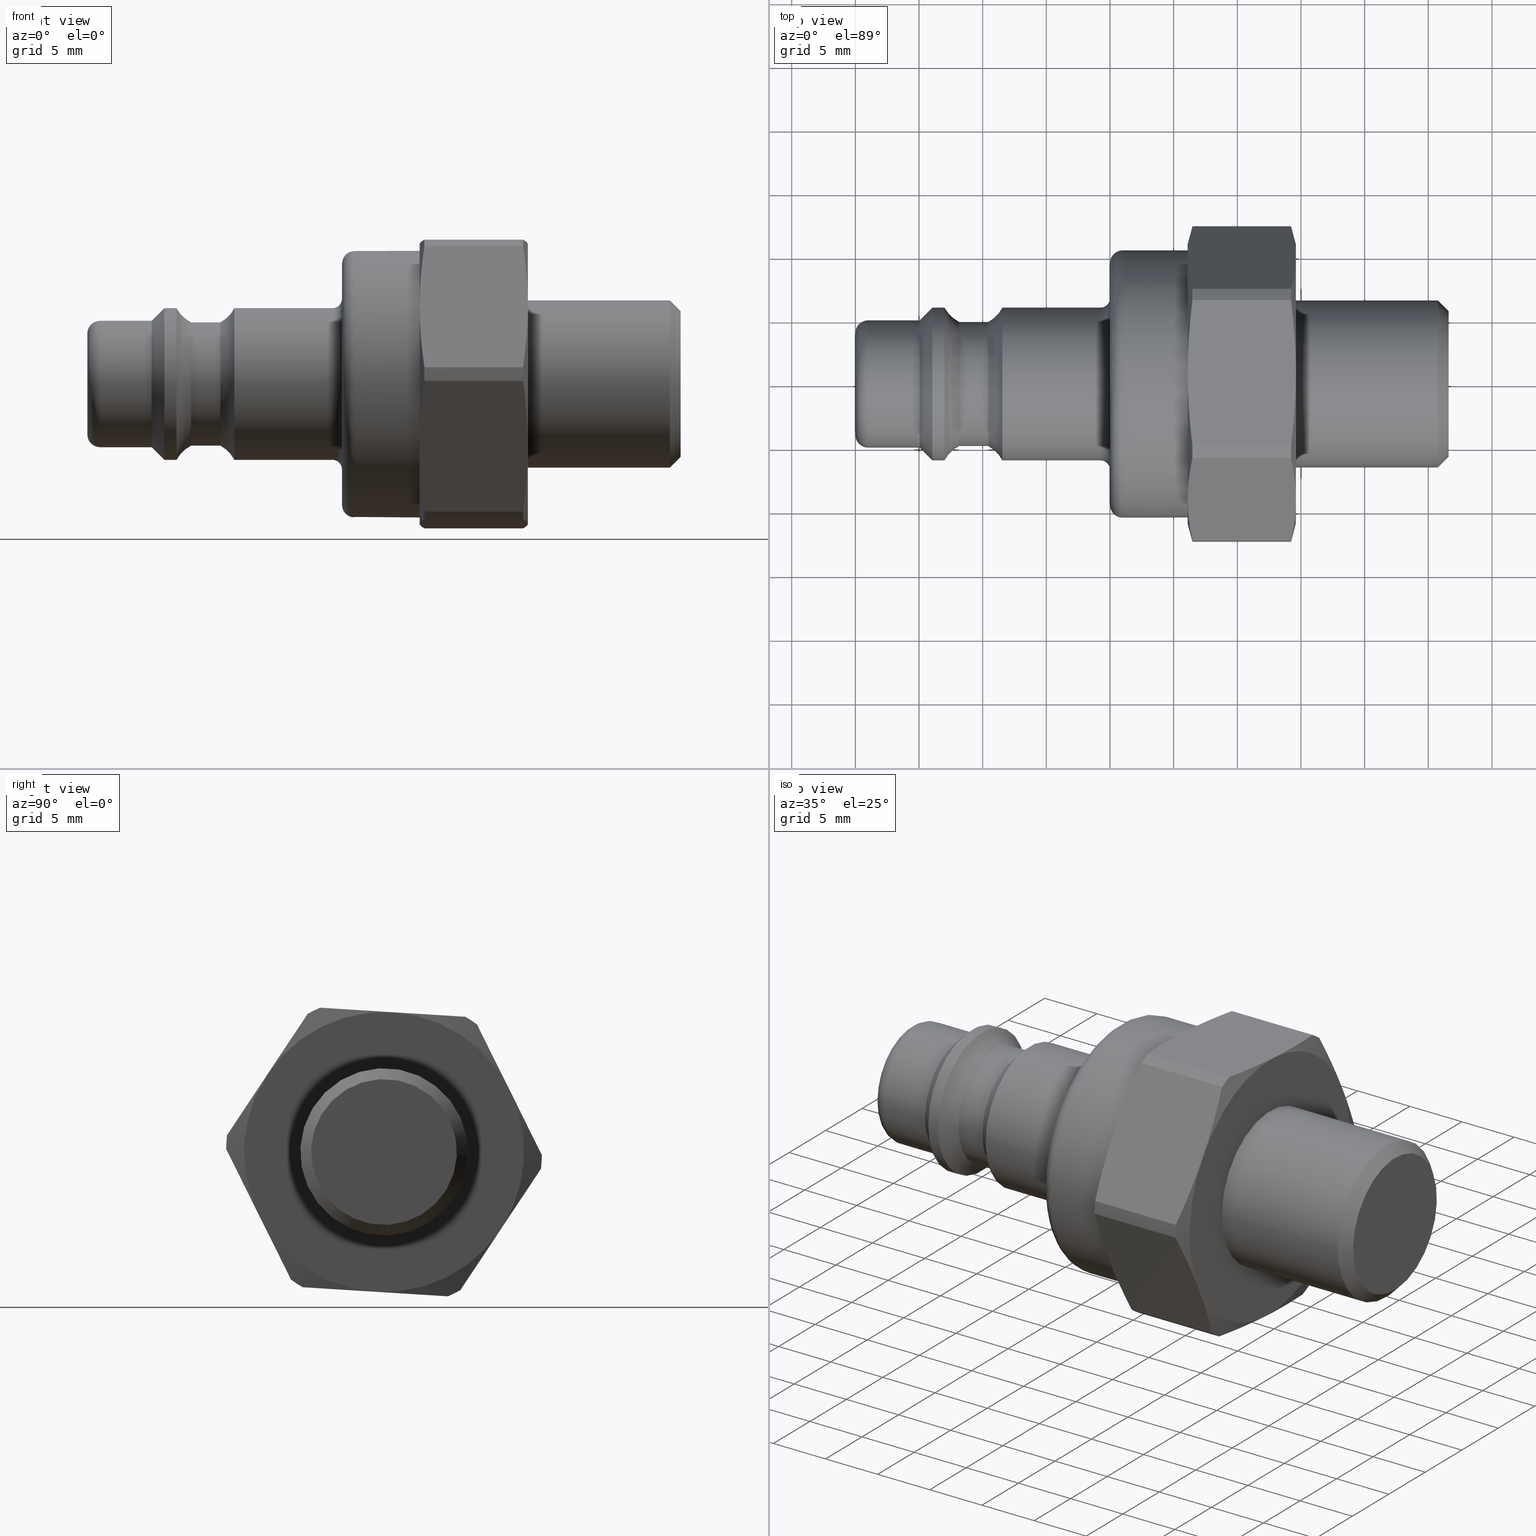
[diagram: canonical four-view strip — front | top / right | iso, engineering-drawing reading convention]
A machine part, canonical four-view strip (front | top / right | iso — engineering-drawing reading convention). The complete STEP part file that produces these views, byte-faithful:
ISO-10303-21;
HEADER;
/****************************************************************
 * Generated by software with PDE/Lib inside                    *
 * PDElib Version v51a, created Thu 01/14/2010                  *
 * ITI Transcendata (http://www.transcendata.com/)              *
 ****************************************************************/
FILE_DESCRIPTION((''),'2;1');
FILE_NAME('J:\\3D Zeichnungen_step\\Serie 25\\25sbaw13mpx.stp','2013-04-05T08:47:49',('IA176480'),(''),'Autodesk Inventor 2011','Autodesk Inventor 2011','');
FILE_SCHEMA(('AUTOMOTIVE_DESIGN { 1 0 10303 214 1 1 1 1 }'));
ENDSEC;
DATA;
#5=APPLICATION_CONTEXT('automotive design');
#6=APPLICATION_PROTOCOL_DEFINITION('International Standard','automotive_design',2001,#5);
#7=PRODUCT_CONTEXT('',#5,'mechanical');
#8=PRODUCT('D105309','D105309',$,(#7));
#9=PRODUCT_RELATED_PRODUCT_CATEGORY('part',$,(#8));
#10=PRODUCT_DEFINITION_FORMATION('',$,#8);
#11=PRODUCT_DEFINITION_CONTEXT('part definition',#5,'design');
#12=PRODUCT_DEFINITION('',$,#10,#11);
#18=(NAMED_UNIT(*)PLANE_ANGLE_UNIT()SI_UNIT($,.RADIAN.));
#19=DIMENSIONAL_EXPONENTS(0.0,0.0,0.0,0.0,0.0,0.0,0.0);
#20=PLANE_ANGLE_MEASURE_WITH_UNIT(PLANE_ANGLE_MEASURE(0.017453292500000),#18);
#24=(CONVERSION_BASED_UNIT('DEGREE',#20)NAMED_UNIT(#19)PLANE_ANGLE_UNIT());
#28=(NAMED_UNIT(*)SI_UNIT($,.STERADIAN.)SOLID_ANGLE_UNIT());
#32=(LENGTH_UNIT()NAMED_UNIT(*)SI_UNIT(.MILLI.,.METRE.));
#34=UNCERTAINTY_MEASURE_WITH_UNIT(LENGTH_MEASURE(0.010000000000000),#32,'DISTANCE_ACCURACY_VALUE','');
#36=(GEOMETRIC_REPRESENTATION_CONTEXT(3)GLOBAL_UNCERTAINTY_ASSIGNED_CONTEXT((#34))GLOBAL_UNIT_ASSIGNED_CONTEXT((#24,#28,#32))REPRESENTATION_CONTEXT('None','None'));
#37=AXIS2_PLACEMENT_3D('',#38,#39,#40);
#38=CARTESIAN_POINT('',(0.0,0.0,0.0));
#39=DIRECTION('',(0.0,0.0,1.0));
#40=DIRECTION('',(1.0,0.0,0.0));
#41=SHAPE_REPRESENTATION('',(#37),#36);
#42=PRODUCT_DEFINITION_SHAPE('','',#12);
#43=SHAPE_DEFINITION_REPRESENTATION(#42,#41);
#49=(NAMED_UNIT(*)PLANE_ANGLE_UNIT()SI_UNIT($,.RADIAN.));
#50=DIMENSIONAL_EXPONENTS(0.0,0.0,0.0,0.0,0.0,0.0,0.0);
#51=PLANE_ANGLE_MEASURE_WITH_UNIT(PLANE_ANGLE_MEASURE(0.017453292500000),#49);
#55=(CONVERSION_BASED_UNIT('DEGREE',#51)NAMED_UNIT(#50)PLANE_ANGLE_UNIT());
#59=(NAMED_UNIT(*)SI_UNIT($,.STERADIAN.)SOLID_ANGLE_UNIT());
#63=(LENGTH_UNIT()NAMED_UNIT(*)SI_UNIT(.MILLI.,.METRE.));
#65=UNCERTAINTY_MEASURE_WITH_UNIT(LENGTH_MEASURE(0.000001000000000),#63,'DISTANCE_ACCURACY_VALUE','');
#67=(GEOMETRIC_REPRESENTATION_CONTEXT(3)GLOBAL_UNCERTAINTY_ASSIGNED_CONTEXT((#65))GLOBAL_UNIT_ASSIGNED_CONTEXT((#55,#59,#63))REPRESENTATION_CONTEXT('','3D'));
#68=CARTESIAN_POINT('',(9.115907397699248,0.0,0.0));
#69=DIRECTION('',(1.0,0.0,0.0));
#70=DIRECTION('',(0.0,0.0,-1.0));
#71=AXIS2_PLACEMENT_3D('',#68,#69,#70);
#72=TOROIDAL_SURFACE('',#71,7.279723877805186,2.750000000000000);
#73=CARTESIAN_POINT('',(11.550000000000001,6.0,0.0));
#74=VERTEX_POINT('',#73);
#75=CARTESIAN_POINT('',(11.550000000000001,0.0,0.0));
#76=DIRECTION('',(1.0,0.0,0.0));
#77=DIRECTION('',(0.0,1.0,0.0));
#78=AXIS2_PLACEMENT_3D('',#75,#76,#77);
#79=CIRCLE('',#78,6.0);
#80=EDGE_CURVE('',#74,#74,#79,.T.);
#81=ORIENTED_EDGE('',*,*,#80,.F.);
#82=EDGE_LOOP('',(#81));
#83=FACE_OUTER_BOUND('',#82,.T.);
#84=CARTESIAN_POINT('',(10.449999999999999,4.875000000000001,0.0));
#85=VERTEX_POINT('',#84);
#86=CARTESIAN_POINT('',(10.449999999999999,0.0,0.0));
#87=DIRECTION('',(1.0,0.0,0.0));
#88=DIRECTION('',(0.0,1.0,0.0));
#89=AXIS2_PLACEMENT_3D('',#86,#87,#88);
#90=CIRCLE('',#89,4.875000000000001);
#91=EDGE_CURVE('',#85,#85,#90,.T.);
#92=ORIENTED_EDGE('',*,*,#91,.T.);
#93=EDGE_LOOP('',(#92));
#94=FACE_BOUND('',#93,.T.);
#95=ADVANCED_FACE('',(#83,#94),#72,.F.);
#96=CARTESIAN_POINT('',(9.299999999999999,0.0,0.0));
#97=DIRECTION('',(1.0,0.0,0.0));
#98=DIRECTION('',(0.0,1.0,0.0));
#99=AXIS2_PLACEMENT_3D('',#96,#97,#98);
#100=CYLINDRICAL_SURFACE('',#99,4.875000000000000);
#101=ORIENTED_EDGE('',*,*,#91,.F.);
#102=EDGE_LOOP('',(#101));
#103=FACE_OUTER_BOUND('',#102,.T.);
#104=CARTESIAN_POINT('',(8.149999999999999,4.875000000000000,0.0));
#105=VERTEX_POINT('',#104);
#106=CARTESIAN_POINT('',(8.149999999999999,0.0,0.0));
#107=DIRECTION('',(1.0,0.0,0.0));
#108=DIRECTION('',(0.0,1.0,0.0));
#109=AXIS2_PLACEMENT_3D('',#106,#107,#108);
#110=CIRCLE('',#109,4.875000000000000);
#111=EDGE_CURVE('',#105,#105,#110,.T.);
#112=ORIENTED_EDGE('',*,*,#111,.T.);
#113=EDGE_LOOP('',(#112));
#114=FACE_BOUND('',#113,.T.);
#115=ADVANCED_FACE('',(#103,#114),#100,.T.);
#116=CARTESIAN_POINT('',(9.413953340553970,0.0,0.0));
#117=DIRECTION('',(1.0,0.0,0.0));
#118=DIRECTION('',(0.0,0.0,-1.0));
#119=AXIS2_PLACEMENT_3D('',#116,#117,#118);
#120=TOROIDAL_SURFACE('',#119,7.317318970344058,2.750000000000000);
#121=ORIENTED_EDGE('',*,*,#111,.F.);
#122=EDGE_LOOP('',(#121));
#123=FACE_OUTER_BOUND('',#122,.T.);
#124=CARTESIAN_POINT('',(7.0,6.000000000000001,0.0));
#125=VERTEX_POINT('',#124);
#126=CARTESIAN_POINT('',(7.0,0.0,0.0));
#127=DIRECTION('',(1.0,0.0,0.0));
#128=DIRECTION('',(0.0,1.0,0.0));
#129=AXIS2_PLACEMENT_3D('',#126,#127,#128);
#130=CIRCLE('',#129,6.000000000000001);
#131=EDGE_CURVE('',#125,#125,#130,.T.);
#132=ORIENTED_EDGE('',*,*,#131,.T.);
#133=EDGE_LOOP('',(#132));
#134=FACE_BOUND('',#133,.T.);
#135=ADVANCED_FACE('',(#123,#134),#120,.F.);
#136=CARTESIAN_POINT('',(6.524999999999998,0.0,0.0));
#137=DIRECTION('',(1.0,0.0,0.0));
#138=DIRECTION('',(0.0,1.0,0.0));
#139=AXIS2_PLACEMENT_3D('',#136,#137,#138);
#140=CYLINDRICAL_SURFACE('',#139,6.000000000000001);
#141=ORIENTED_EDGE('',*,*,#131,.F.);
#142=EDGE_LOOP('',(#141));
#143=FACE_OUTER_BOUND('',#142,.T.);
#144=CARTESIAN_POINT('',(6.049999999999995,6.000000000000001,0.0));
#145=VERTEX_POINT('',#144);
#146=CARTESIAN_POINT('',(6.049999999999995,0.0,0.0));
#147=DIRECTION('',(1.0,0.0,0.0));
#148=DIRECTION('',(0.0,1.0,0.0));
#149=AXIS2_PLACEMENT_3D('',#146,#147,#148);
#150=CIRCLE('',#149,6.000000000000001);
#151=EDGE_CURVE('',#145,#145,#150,.T.);
#152=ORIENTED_EDGE('',*,*,#151,.T.);
#153=EDGE_LOOP('',(#152));
#154=FACE_BOUND('',#153,.T.);
#155=ADVANCED_FACE('',(#143,#154),#140,.T.);
#156=CARTESIAN_POINT('',(5.549999999999997,0.0,0.0));
#157=DIRECTION('',(1.0,0.0,0.0));
#158=DIRECTION('',(0.0,1.0,0.0));
#159=AXIS2_PLACEMENT_3D('',#156,#157,#158);
#160=CONICAL_SURFACE('',#159,5.500000000000000,45.000000000000135);
#161=ORIENTED_EDGE('',*,*,#151,.F.);
#162=EDGE_LOOP('',(#161));
#163=FACE_OUTER_BOUND('',#162,.T.);
#164=CARTESIAN_POINT('',(5.049999999999999,5.0,0.0));
#165=VERTEX_POINT('',#164);
#166=CARTESIAN_POINT('',(5.049999999999999,0.0,0.0));
#167=DIRECTION('',(1.0,0.0,0.0));
#168=DIRECTION('',(0.0,1.0,0.0));
#169=AXIS2_PLACEMENT_3D('',#166,#167,#168);
#170=CIRCLE('',#169,5.0);
#171=EDGE_CURVE('',#165,#165,#170,.T.);
#172=ORIENTED_EDGE('',*,*,#171,.T.);
#173=EDGE_LOOP('',(#172));
#174=FACE_BOUND('',#173,.T.);
#175=ADVANCED_FACE('',(#163,#174),#160,.T.);
#176=CARTESIAN_POINT('',(-8.326673E-016,3.899999999999999,0.0));
#177=DIRECTION('',(-1.0,0.0,0.0));
#178=DIRECTION('',(0.0,0.0,1.0));
#179=AXIS2_PLACEMENT_3D('',#176,#177,#178);
#180=PLANE('',#179);
#181=CARTESIAN_POINT('',(-8.326673E-016,4.0,0.0));
#182=VERTEX_POINT('',#181);
#183=CARTESIAN_POINT('',(-8.326673E-016,0.0,0.0));
#184=DIRECTION('',(1.0,0.0,0.0));
#185=DIRECTION('',(0.0,-1.0,0.0));
#186=AXIS2_PLACEMENT_3D('',#183,#184,#185);
#187=CIRCLE('',#186,4.0);
#188=EDGE_CURVE('',#182,#182,#187,.T.);
#189=ORIENTED_EDGE('',*,*,#188,.F.);
#190=EDGE_LOOP('',(#189));
#191=FACE_OUTER_BOUND('',#190,.T.);
#192=ADVANCED_FACE('',(#191),#180,.T.);
#193=CARTESIAN_POINT('',(2.524999999999999,0.0,0.0));
#194=DIRECTION('',(1.0,0.0,0.0));
#195=DIRECTION('',(0.0,1.0,0.0));
#196=AXIS2_PLACEMENT_3D('',#193,#194,#195);
#197=CYLINDRICAL_SURFACE('',#196,5.0);
#198=ORIENTED_EDGE('',*,*,#171,.F.);
#199=EDGE_LOOP('',(#198));
#200=FACE_OUTER_BOUND('',#199,.T.);
#201=CARTESIAN_POINT('',(0.999999999999999,5.0,-1.224647E-015));
#202=VERTEX_POINT('',#201);
#203=CARTESIAN_POINT('',(0.999999999999999,0.0,0.0));
#204=DIRECTION('',(-1.0,0.0,0.0));
#205=DIRECTION('',(0.0,-1.0,0.0));
#206=AXIS2_PLACEMENT_3D('',#203,#204,#205);
#207=CIRCLE('',#206,5.0);
#208=EDGE_CURVE('',#202,#202,#207,.T.);
#209=ORIENTED_EDGE('',*,*,#208,.F.);
#210=EDGE_LOOP('',(#209));
#211=FACE_BOUND('',#210,.T.);
#212=ADVANCED_FACE('',(#200,#211),#197,.T.);
#213=CARTESIAN_POINT('',(0.999999999999999,0.0,0.0));
#214=DIRECTION('',(1.0,0.0,0.0));
#215=DIRECTION('',(0.0,0.0,-1.0));
#216=AXIS2_PLACEMENT_3D('',#213,#214,#215);
#217=TOROIDAL_SURFACE('',#216,4.0,1.0);
#218=ORIENTED_EDGE('',*,*,#188,.T.);
#219=EDGE_LOOP('',(#218));
#220=FACE_OUTER_BOUND('',#219,.T.);
#221=ORIENTED_EDGE('',*,*,#208,.T.);
#222=EDGE_LOOP('',(#221));
#223=FACE_BOUND('',#222,.T.);
#224=ADVANCED_FACE('',(#220,#223),#217,.T.);
#225=CARTESIAN_POINT('',(21.500000000000000,0.0,0.0));
#226=DIRECTION('',(1.0,0.0,0.0));
#227=DIRECTION('',(0.0,1.0,0.0));
#228=AXIS2_PLACEMENT_3D('',#225,#226,#227);
#229=CYLINDRICAL_SURFACE('',#228,10.500000000000000);
#230=CARTESIAN_POINT('',(26.100000000000009,10.479489730334826,-0.655968743010619));
#231=VERTEX_POINT('',#230);
#232=CARTESIAN_POINT('',(26.100000000000009,0.0,0.0));
#233=DIRECTION('',(-1.000000000000000,0.0,0.0));
#234=DIRECTION('',(0.0,0.998046640984269,-0.062473213620059));
#235=AXIS2_PLACEMENT_3D('',#232,#233,#234);
#236=CIRCLE('',#235,10.500000000000000);
#237=EDGE_CURVE('',#231,#231,#236,.T.);
#238=ORIENTED_EDGE('',*,*,#237,.T.);
#239=EDGE_LOOP('',(#238));
#240=FACE_OUTER_BOUND('',#239,.T.);
#241=CARTESIAN_POINT('',(21.0,10.500000000000000,-2.571758E-015));
#242=VERTEX_POINT('',#241);
#243=CARTESIAN_POINT('',(21.0,0.0,0.0));
#244=DIRECTION('',(-1.0,0.0,0.0));
#245=DIRECTION('',(0.0,-1.0,0.0));
#246=AXIS2_PLACEMENT_3D('',#243,#244,#245);
#247=CIRCLE('',#246,10.500000000000000);
#248=EDGE_CURVE('',#242,#242,#247,.T.);
#249=ORIENTED_EDGE('',*,*,#248,.F.);
#250=EDGE_LOOP('',(#249));
#251=FACE_BOUND('',#250,.T.);
#252=ADVANCED_FACE('',(#240,#251),#229,.T.);
#253=CARTESIAN_POINT('',(21.0,0.0,0.0));
#254=DIRECTION('',(1.0,0.0,0.0));
#255=DIRECTION('',(0.0,0.0,-1.0));
#256=AXIS2_PLACEMENT_3D('',#253,#254,#255);
#257=TOROIDAL_SURFACE('',#256,9.500000000000000,1.0);
#258=CARTESIAN_POINT('',(20.0,9.500000000000000,0.0));
#259=VERTEX_POINT('',#258);
#260=CARTESIAN_POINT('',(20.0,0.0,0.0));
#261=DIRECTION('',(1.0,0.0,0.0));
#262=DIRECTION('',(0.0,-1.0,0.0));
#263=AXIS2_PLACEMENT_3D('',#260,#261,#262);
#264=CIRCLE('',#263,9.500000000000000);
#265=EDGE_CURVE('',#259,#259,#264,.T.);
#266=ORIENTED_EDGE('',*,*,#265,.T.);
#267=EDGE_LOOP('',(#266));
#268=FACE_OUTER_BOUND('',#267,.T.);
#269=ORIENTED_EDGE('',*,*,#248,.T.);
#270=EDGE_LOOP('',(#269));
#271=FACE_BOUND('',#270,.T.);
#272=ADVANCED_FACE('',(#268,#271),#257,.T.);
#273=CARTESIAN_POINT('',(15.775000000000002,0.0,0.0));
#274=DIRECTION('',(1.0,0.0,0.0));
#275=DIRECTION('',(0.0,1.0,0.0));
#276=AXIS2_PLACEMENT_3D('',#273,#274,#275);
#277=CYLINDRICAL_SURFACE('',#276,6.000000000000001);
#278=ORIENTED_EDGE('',*,*,#80,.T.);
#279=EDGE_LOOP('',(#278));
#280=FACE_OUTER_BOUND('',#279,.T.);
#281=CARTESIAN_POINT('',(19.250000000000000,6.000000000000001,0.0));
#282=VERTEX_POINT('',#281);
#283=CARTESIAN_POINT('',(19.250000000000000,0.0,0.0));
#284=DIRECTION('',(1.0,0.0,0.0));
#285=DIRECTION('',(0.0,-1.0,0.0));
#286=AXIS2_PLACEMENT_3D('',#283,#284,#285);
#287=CIRCLE('',#286,6.000000000000001);
#288=EDGE_CURVE('',#282,#282,#287,.T.);
#289=ORIENTED_EDGE('',*,*,#288,.F.);
#290=EDGE_LOOP('',(#289));
#291=FACE_BOUND('',#290,.T.);
#292=ADVANCED_FACE('',(#280,#291),#277,.T.);
#293=CARTESIAN_POINT('',(20.0,8.250000000000002,0.0));
#294=DIRECTION('',(-1.0,0.0,0.0));
#295=DIRECTION('',(0.0,0.0,1.0));
#296=AXIS2_PLACEMENT_3D('',#293,#294,#295);
#297=PLANE('',#296);
#298=ORIENTED_EDGE('',*,*,#265,.F.);
#299=EDGE_LOOP('',(#298));
#300=FACE_OUTER_BOUND('',#299,.T.);
#301=CARTESIAN_POINT('',(20.0,6.750000000000000,-1.653273E-015));
#302=VERTEX_POINT('',#301);
#303=CARTESIAN_POINT('',(20.0,0.0,0.0));
#304=DIRECTION('',(-1.0,0.0,0.0));
#305=DIRECTION('',(0.0,-1.0,0.0));
#306=AXIS2_PLACEMENT_3D('',#303,#304,#305);
#307=CIRCLE('',#306,6.750000000000000);
#308=EDGE_CURVE('',#302,#302,#307,.T.);
#309=ORIENTED_EDGE('',*,*,#308,.F.);
#310=EDGE_LOOP('',(#309));
#311=FACE_BOUND('',#310,.T.);
#312=ADVANCED_FACE('',(#300,#311),#297,.T.);
#313=CARTESIAN_POINT('',(19.250000000000000,0.0,0.0));
#314=DIRECTION('',(1.0,0.0,0.0));
#315=DIRECTION('',(0.0,0.0,-1.0));
#316=AXIS2_PLACEMENT_3D('',#313,#314,#315);
#317=TOROIDAL_SURFACE('',#316,6.750000000000000,0.750000000000000);
#318=ORIENTED_EDGE('',*,*,#288,.T.);
#319=EDGE_LOOP('',(#318));
#320=FACE_OUTER_BOUND('',#319,.T.);
#321=ORIENTED_EDGE('',*,*,#308,.T.);
#322=EDGE_LOOP('',(#321));
#323=FACE_BOUND('',#322,.T.);
#324=ADVANCED_FACE('',(#320,#323),#317,.F.);
#325=CARTESIAN_POINT('',(26.100000000000009,10.729001390580894,-0.671587046415633));
#326=DIRECTION('',(-1.0,0.0,0.0));
#327=DIRECTION('',(0.0,0.062473213620059,0.998046640984269));
#328=AXIS2_PLACEMENT_3D('',#325,#326,#327);
#329=PLANE('',#328);
#330=CARTESIAN_POINT('',(26.100000000000009,-0.687205349820648,-10.978513050826962));
#331=VERTEX_POINT('',#330);
#332=CARTESIAN_POINT('',(26.100000000000009,-9.851273872705471,-4.894119234852229));
#333=VERTEX_POINT('',#332);
#334=CARTESIAN_POINT('',(26.100000000000009,0.0,0.0));
#335=DIRECTION('',(-1.0,0.0,0.0));
#336=DIRECTION('',(0.0,0.998046640984269,-0.062473213620059));
#337=AXIS2_PLACEMENT_3D('',#334,#335,#336);
#338=CIRCLE('',#337,11.000000000000002);
#339=EDGE_CURVE('',#331,#333,#338,.T.);
#340=ORIENTED_EDGE('',*,*,#339,.T.);
#341=CARTESIAN_POINT('',(26.100000000000009,-9.164068522884826,6.084393815974732));
#342=VERTEX_POINT('',#341);
#343=CARTESIAN_POINT('',(26.100000000000009,0.0,0.0));
#344=DIRECTION('',(-1.0,0.0,0.0));
#345=DIRECTION('',(0.0,0.998046640984269,-0.062473213620059));
#346=AXIS2_PLACEMENT_3D('',#343,#344,#345);
#347=CIRCLE('',#346,11.000000000000002);
#348=EDGE_CURVE('',#333,#342,#347,.T.);
#349=ORIENTED_EDGE('',*,*,#348,.T.);
#350=CARTESIAN_POINT('',(26.100000000000009,0.687205349820646,10.978513050826962));
#351=VERTEX_POINT('',#350);
#352=CARTESIAN_POINT('',(26.100000000000009,0.0,0.0));
#353=DIRECTION('',(-1.0,0.0,0.0));
#354=DIRECTION('',(0.0,0.998046640984269,-0.062473213620059));
#355=AXIS2_PLACEMENT_3D('',#352,#353,#354);
#356=CIRCLE('',#355,11.000000000000002);
#357=EDGE_CURVE('',#342,#351,#356,.T.);
#358=ORIENTED_EDGE('',*,*,#357,.T.);
#359=CARTESIAN_POINT('',(26.100000000000009,9.851273872705470,4.894119234852232));
#360=VERTEX_POINT('',#359);
#361=CARTESIAN_POINT('',(26.100000000000009,0.0,0.0));
#362=DIRECTION('',(-1.0,0.0,0.0));
#363=DIRECTION('',(0.0,0.998046640984269,-0.062473213620059));
#364=AXIS2_PLACEMENT_3D('',#361,#362,#363);
#365=CIRCLE('',#364,11.000000000000002);
#366=EDGE_CURVE('',#351,#360,#365,.T.);
#367=ORIENTED_EDGE('',*,*,#366,.T.);
#368=CARTESIAN_POINT('',(26.100000000000009,9.164068522884829,-6.084393815974726));
#369=VERTEX_POINT('',#368);
#370=CARTESIAN_POINT('',(26.100000000000009,0.0,0.0));
#371=DIRECTION('',(-1.0,0.0,0.0));
#372=DIRECTION('',(0.0,0.998046640984269,-0.062473213620059));
#373=AXIS2_PLACEMENT_3D('',#370,#371,#372);
#374=CIRCLE('',#373,11.000000000000002);
#375=EDGE_CURVE('',#360,#369,#374,.T.);
#376=ORIENTED_EDGE('',*,*,#375,.T.);
#377=CARTESIAN_POINT('',(26.100000000000009,0.0,0.0));
#378=DIRECTION('',(-1.0,0.0,0.0));
#379=DIRECTION('',(0.0,0.998046640984269,-0.062473213620059));
#380=AXIS2_PLACEMENT_3D('',#377,#378,#379);
#381=CIRCLE('',#380,11.000000000000002);
#382=EDGE_CURVE('',#369,#331,#381,.T.);
#383=ORIENTED_EDGE('',*,*,#382,.T.);
#384=EDGE_LOOP('',(#340,#349,#358,#367,#376,#383));
#385=FACE_OUTER_BOUND('',#384,.T.);
#386=ORIENTED_EDGE('',*,*,#237,.F.);
#387=EDGE_LOOP('',(#386));
#388=FACE_BOUND('',#387,.T.);
#389=ADVANCED_FACE('',(#385,#388),#329,.T.);
#390=CARTESIAN_POINT('',(30.350000000000009,0.0,0.0));
#391=DIRECTION('',(-1.0,0.0,0.0));
#392=DIRECTION('',(0.0,0.998046640984269,-0.062473213620059));
#393=AXIS2_PLACEMENT_3D('',#390,#391,#392);
#394=CYLINDRICAL_SURFACE('',#393,12.400000000000004);
#395=CARTESIAN_POINT('',(34.224871130596441,12.329964038112358,-1.316049702274220));
#396=VERTEX_POINT('',#395);
#397=CARTESIAN_POINT('',(26.475128869403580,12.329964038112358,-1.316049702274224));
#398=VERTEX_POINT('',#397);
#399=CARTESIAN_POINT('',(34.224871130596441,12.329964038112358,-1.316049702274220));
#400=DIRECTION('',(-1.0,0.0,0.0));
#401=VECTOR('',#400,7.749742261192864);
#402=LINE('',#399,#401);
#403=EDGE_CURVE('',#396,#398,#402,.T.);
#404=ORIENTED_EDGE('',*,*,#403,.T.);
#405=CARTESIAN_POINT('',(26.475128869403580,12.397833251542334,-0.231798763912281));
#406=VERTEX_POINT('',#405);
#407=CARTESIAN_POINT('',(26.475128869403580,0.0,0.0));
#408=DIRECTION('',(-1.0,0.0,0.0));
#409=DIRECTION('',(0.0,0.998046640984269,-0.062473213620059));
#410=AXIS2_PLACEMENT_3D('',#407,#408,#409);
#411=CIRCLE('',#410,12.400000000000000);
#412=EDGE_CURVE('',#406,#398,#411,.T.);
#413=ORIENTED_EDGE('',*,*,#412,.F.);
#414=CARTESIAN_POINT('',(34.224871130596441,12.397833251542336,-0.231798763912285));
#415=VERTEX_POINT('',#414);
#416=CARTESIAN_POINT('',(26.475128869403576,12.397833251542336,-0.231798763912285));
#417=DIRECTION('',(1.0,0.0,0.0));
#418=VECTOR('',#417,7.749742261192864);
#419=LINE('',#416,#418);
#420=EDGE_CURVE('',#406,#415,#419,.T.);
#421=ORIENTED_EDGE('',*,*,#420,.T.);
#422=CARTESIAN_POINT('',(34.224871130596441,0.0,0.0));
#423=DIRECTION('',(-1.000000000000000,0.0,0.0));
#424=DIRECTION('',(0.0,0.998046640984269,-0.062473213620059));
#425=AXIS2_PLACEMENT_3D('',#422,#423,#424);
#426=CIRCLE('',#425,12.400000000000002);
#427=EDGE_CURVE('',#415,#396,#426,.T.);
#428=ORIENTED_EDGE('',*,*,#427,.T.);
#429=EDGE_LOOP('',(#404,#413,#421,#428));
#430=FACE_OUTER_BOUND('',#429,.T.);
#431=ADVANCED_FACE('',(#430),#394,.T.);
#432=CARTESIAN_POINT('',(34.412435565298225,0.0,0.0));
#433=DIRECTION('',(-1.0,0.0,0.0));
#434=DIRECTION('',(0.0,0.998046640984269,-0.062473213620059));
#435=AXIS2_PLACEMENT_3D('',#432,#433,#434);
#436=CONICAL_SURFACE('',#435,11.700000000000001,75.000000000000043);
#437=CARTESIAN_POINT('',(34.600000000000016,9.164068522884829,-6.084393815974726));
#438=VERTEX_POINT('',#437);
#439=CARTESIAN_POINT('',(34.600000000000009,9.164068522884833,-6.084393815974728));
#440=CARTESIAN_POINT('',(34.600000000000016,10.652310004402068,-3.842864531756507));
#441=CARTESIAN_POINT('',(34.224871130596441,12.329964038112358,-1.316049702274226));
#449=(BOUNDED_CURVE()B_SPLINE_CURVE(2,(#439,#440,#441),.UNSPECIFIED.,.F.,.U.)B_SPLINE_CURVE_WITH_KNOTS((3,3),(0.573870031976507,1.147740063953014),.UNSPECIFIED.)CURVE()GEOMETRIC_REPRESENTATION_ITEM()RATIONAL_B_SPLINE_CURVE((1.0,1.031327476428458,1.0))REPRESENTATION_ITEM(''));
#450=EDGE_CURVE('',#438,#396,#449,.T.);
#451=ORIENTED_EDGE('',*,*,#450,.T.);
#452=ORIENTED_EDGE('',*,*,#427,.F.);
#453=CARTESIAN_POINT('',(34.600000000000016,9.851273872705470,4.894119234852232));
#454=VERTEX_POINT('',#453);
#455=CARTESIAN_POINT('',(34.224871130596441,12.397833251542336,-0.231798763912283));
#456=CARTESIAN_POINT('',(34.600000000000016,11.048374435406565,2.484499662783439));
#457=CARTESIAN_POINT('',(34.600000000000016,9.851273872705468,4.894119234852234));
#465=(BOUNDED_CURVE()B_SPLINE_CURVE(2,(#455,#456,#457),.UNSPECIFIED.,.F.,.U.)B_SPLINE_CURVE_WITH_KNOTS((3,3),(0.0,0.573870031976508),.UNSPECIFIED.)CURVE()GEOMETRIC_REPRESENTATION_ITEM()RATIONAL_B_SPLINE_CURVE((1.0,1.031327476428499,1.0))REPRESENTATION_ITEM(''));
#466=EDGE_CURVE('',#415,#454,#465,.T.);
#467=ORIENTED_EDGE('',*,*,#466,.T.);
#468=CARTESIAN_POINT('',(34.600000000000016,0.0,0.0));
#469=DIRECTION('',(-1.0,0.0,0.0));
#470=DIRECTION('',(0.0,0.998046640984269,-0.062473213620059));
#471=AXIS2_PLACEMENT_3D('',#468,#469,#470);
#472=CIRCLE('',#471,11.000000000000002);
#473=EDGE_CURVE('',#454,#438,#472,.T.);
#474=ORIENTED_EDGE('',*,*,#473,.T.);
#475=EDGE_LOOP('',(#451,#452,#467,#474));
#476=FACE_OUTER_BOUND('',#475,.T.);
#477=ADVANCED_FACE('',(#476),#436,.T.);
#478=CARTESIAN_POINT('',(34.600000000000016,8.772081439270988,-0.549092692810103));
#479=DIRECTION('',(1.0,0.0,0.0));
#480=DIRECTION('',(0.0,-0.062473213620059,-0.998046640984269));
#481=AXIS2_PLACEMENT_3D('',#478,#479,#480);
#482=PLANE('',#481);
#483=CARTESIAN_POINT('',(34.600000000000016,-0.687205349820648,-10.978513050826962));
#484=VERTEX_POINT('',#483);
#485=CARTESIAN_POINT('',(34.600000000000016,-9.851273872705471,-4.894119234852229));
#486=VERTEX_POINT('',#485);
#487=CARTESIAN_POINT('',(34.600000000000016,0.0,0.0));
#488=DIRECTION('',(-1.0,0.0,0.0));
#489=DIRECTION('',(0.0,0.998046640984269,-0.062473213620059));
#490=AXIS2_PLACEMENT_3D('',#487,#488,#489);
#491=CIRCLE('',#490,11.000000000000002);
#492=EDGE_CURVE('',#484,#486,#491,.T.);
#493=ORIENTED_EDGE('',*,*,#492,.F.);
#494=CARTESIAN_POINT('',(34.600000000000016,0.0,0.0));
#495=DIRECTION('',(-1.0,0.0,0.0));
#496=DIRECTION('',(0.0,0.998046640984269,-0.062473213620059));
#497=AXIS2_PLACEMENT_3D('',#494,#495,#496);
#498=CIRCLE('',#497,11.000000000000002);
#499=EDGE_CURVE('',#438,#484,#498,.T.);
#500=ORIENTED_EDGE('',*,*,#499,.F.);
#501=ORIENTED_EDGE('',*,*,#473,.F.);
#502=CARTESIAN_POINT('',(34.600000000000016,0.687205349820646,10.978513050826962));
#503=VERTEX_POINT('',#502);
#504=CARTESIAN_POINT('',(34.600000000000016,0.0,0.0));
#505=DIRECTION('',(-1.0,0.0,0.0));
#506=DIRECTION('',(0.0,0.998046640984269,-0.062473213620059));
#507=AXIS2_PLACEMENT_3D('',#504,#505,#506);
#508=CIRCLE('',#507,11.000000000000002);
#509=EDGE_CURVE('',#503,#454,#508,.T.);
#510=ORIENTED_EDGE('',*,*,#509,.F.);
#511=CARTESIAN_POINT('',(34.600000000000016,-9.164068522884826,6.084393815974732));
#512=VERTEX_POINT('',#511);
#513=CARTESIAN_POINT('',(34.600000000000016,0.0,0.0));
#514=DIRECTION('',(-1.0,0.0,0.0));
#515=DIRECTION('',(0.0,0.998046640984269,-0.062473213620059));
#516=AXIS2_PLACEMENT_3D('',#513,#514,#515);
#517=CIRCLE('',#516,11.000000000000002);
#518=EDGE_CURVE('',#512,#503,#517,.T.);
#519=ORIENTED_EDGE('',*,*,#518,.F.);
#520=CARTESIAN_POINT('',(34.600000000000016,0.0,0.0));
#521=DIRECTION('',(-1.0,0.0,0.0));
#522=DIRECTION('',(0.0,0.998046640984269,-0.062473213620059));
#523=AXIS2_PLACEMENT_3D('',#520,#521,#522);
#524=CIRCLE('',#523,11.000000000000002);
#525=EDGE_CURVE('',#486,#512,#524,.T.);
#526=ORIENTED_EDGE('',*,*,#525,.F.);
#527=EDGE_LOOP('',(#493,#500,#501,#510,#519,#526));
#528=FACE_OUTER_BOUND('',#527,.T.);
#529=CARTESIAN_POINT('',(34.600000000000016,6.565649827715014,-0.410980035799558));
#530=VERTEX_POINT('',#529);
#531=CARTESIAN_POINT('',(34.600000000000016,0.0,0.0));
#532=DIRECTION('',(-1.000000000000000,0.0,0.0));
#533=DIRECTION('',(0.0,0.998046640984269,-0.062473213620059));
#534=AXIS2_PLACEMENT_3D('',#531,#532,#533);
#535=CIRCLE('',#534,6.578500000000000);
#536=EDGE_CURVE('',#530,#530,#535,.T.);
#537=ORIENTED_EDGE('',*,*,#536,.T.);
#538=EDGE_LOOP('',(#537));
#539=FACE_BOUND('',#538,.T.);
#540=ADVANCED_FACE('',(#528,#539),#482,.T.);
#541=CARTESIAN_POINT('',(40.600000000000016,0.0,0.0));
#542=DIRECTION('',(-1.0,0.0,0.0));
#543=DIRECTION('',(0.0,0.998046640984269,-0.062473213620059));
#544=AXIS2_PLACEMENT_3D('',#541,#542,#543);
#545=CYLINDRICAL_SURFACE('',#544,6.578500000000001);
#546=ORIENTED_EDGE('',*,*,#536,.F.);
#547=EDGE_LOOP('',(#546));
#548=FACE_OUTER_BOUND('',#547,.T.);
#549=CARTESIAN_POINT('',(45.750000000000014,6.565649827715014,-0.410980035799557));
#550=VERTEX_POINT('',#549);
#551=CARTESIAN_POINT('',(45.750000000000014,0.0,0.0));
#552=DIRECTION('',(1.000000000000000,0.0,0.0));
#553=DIRECTION('',(0.0,-0.998046640984269,0.062473213620059));
#554=AXIS2_PLACEMENT_3D('',#551,#552,#553);
#555=CIRCLE('',#554,6.578500000000000);
#556=EDGE_CURVE('',#550,#550,#555,.T.);
#557=ORIENTED_EDGE('',*,*,#556,.F.);
#558=EDGE_LOOP('',(#557));
#559=FACE_BOUND('',#558,.T.);
#560=ADVANCED_FACE('',(#548,#559),#545,.T.);
#561=CARTESIAN_POINT('',(46.600000000000009,5.653185686195147,-0.353863900247419));
#562=DIRECTION('',(1.0,0.0,0.0));
#563=DIRECTION('',(0.0,-0.062473213620059,-0.998046640984269));
#564=AXIS2_PLACEMENT_3D('',#561,#562,#563);
#565=PLANE('',#564);
#566=CARTESIAN_POINT('',(46.600000000000009,5.717310182878387,-0.357877804222508));
#567=VERTEX_POINT('',#566);
#568=CARTESIAN_POINT('',(46.600000000000009,0.0,0.0));
#569=DIRECTION('',(-1.0,0.0,0.0));
#570=DIRECTION('',(0.0,-0.998046640984269,0.062473213620059));
#571=AXIS2_PLACEMENT_3D('',#568,#569,#570);
#572=CIRCLE('',#571,5.728500000000001);
#573=EDGE_CURVE('',#567,#567,#572,.T.);
#574=ORIENTED_EDGE('',*,*,#573,.F.);
#575=EDGE_LOOP('',(#574));
#576=FACE_OUTER_BOUND('',#575,.T.);
#577=ADVANCED_FACE('',(#576),#565,.T.);
#578=CARTESIAN_POINT('',(46.175000000000011,0.0,0.0));
#579=DIRECTION('',(-1.0,0.0,0.0));
#580=DIRECTION('',(0.0,-0.998046640984269,0.062473213620059));
#581=AXIS2_PLACEMENT_3D('',#578,#579,#580);
#582=CONICAL_SURFACE('',#581,6.153499999999999,45.000000000000021);
#583=ORIENTED_EDGE('',*,*,#573,.T.);
#584=EDGE_LOOP('',(#583));
#585=FACE_OUTER_BOUND('',#584,.T.);
#586=ORIENTED_EDGE('',*,*,#556,.T.);
#587=EDGE_LOOP('',(#586));
#588=FACE_BOUND('',#587,.T.);
#589=ADVANCED_FACE('',(#585,#588),#582,.T.);
#590=CARTESIAN_POINT('',(35.103958383198318,-0.687205349820648,-10.978513050826962));
#591=DIRECTION('',(0.0,0.062473213620059,0.998046640984269));
#592=DIRECTION('',(1.0,0.0,0.0));
#593=AXIS2_PLACEMENT_3D('',#590,#591,#592);
#594=PLANE('',#593);
#595=CARTESIAN_POINT('',(34.224871130596441,-6.399660243885044,-10.620939165762946));
#596=VERTEX_POINT('',#595);
#597=CARTESIAN_POINT('',(34.224871130596441,-6.399660243885039,-10.620939165762946));
#598=CARTESIAN_POINT('',(34.600000000000009,-3.372547394038994,-10.810422762976353));
#599=CARTESIAN_POINT('',(34.600000000000016,-0.687205349820648,-10.978513050826962));
#607=(BOUNDED_CURVE()B_SPLINE_CURVE(2,(#597,#598,#599),.UNSPECIFIED.,.F.,.U.)B_SPLINE_CURVE_WITH_KNOTS((3,3),(0.0,0.573870031976507),.UNSPECIFIED.)CURVE()GEOMETRIC_REPRESENTATION_ITEM()RATIONAL_B_SPLINE_CURVE((1.0,1.031327476428519,1.0))REPRESENTATION_ITEM(''));
#608=EDGE_CURVE('',#596,#484,#607,.T.);
#609=ORIENTED_EDGE('',*,*,#608,.F.);
#610=CARTESIAN_POINT('',(26.475128869403580,-6.399660243885039,-10.620939165762946));
#611=VERTEX_POINT('',#610);
#612=CARTESIAN_POINT('',(26.475128869403576,-6.399660243885044,-10.620939165762946));
#613=DIRECTION('',(1.0,0.0,0.0));
#614=VECTOR('',#613,7.749742261192864);
#615=LINE('',#612,#614);
#616=EDGE_CURVE('',#611,#596,#615,.T.);
#617=ORIENTED_EDGE('',*,*,#616,.F.);
#618=CARTESIAN_POINT('',(26.100000000000009,-0.687205349820648,-10.978513050826962));
#619=CARTESIAN_POINT('',(26.100000000000009,-3.372547394038990,-10.810422762976353));
#620=CARTESIAN_POINT('',(26.475128869403580,-6.399660243885039,-10.620939165762946));
#628=(BOUNDED_CURVE()B_SPLINE_CURVE(2,(#618,#619,#620),.UNSPECIFIED.,.F.,.U.)B_SPLINE_CURVE_WITH_KNOTS((3,3),(0.573870031976507,1.147740063953015),.UNSPECIFIED.)CURVE()GEOMETRIC_REPRESENTATION_ITEM()RATIONAL_B_SPLINE_CURVE((1.0,1.031327476428472,1.0))REPRESENTATION_ITEM(''));
#629=EDGE_CURVE('',#331,#611,#628,.T.);
#630=ORIENTED_EDGE('',*,*,#629,.F.);
#631=CARTESIAN_POINT('',(26.475128869403580,5.025249544243744,-11.336086935890977));
#632=VERTEX_POINT('',#631);
#633=CARTESIAN_POINT('',(26.475128869403580,5.025249544243744,-11.336086935890977));
#634=CARTESIAN_POINT('',(26.100000000000009,1.998136694397694,-11.146603338677570));
#635=CARTESIAN_POINT('',(26.100000000000009,-0.687205349820648,-10.978513050826962));
#643=(BOUNDED_CURVE()B_SPLINE_CURVE(2,(#633,#634,#635),.UNSPECIFIED.,.F.,.U.)B_SPLINE_CURVE_WITH_KNOTS((3,3),(0.0,0.573870031976507),.UNSPECIFIED.)CURVE()GEOMETRIC_REPRESENTATION_ITEM()RATIONAL_B_SPLINE_CURVE((1.0,1.031327476428472,1.0))REPRESENTATION_ITEM(''));
#644=EDGE_CURVE('',#632,#331,#643,.T.);
#645=ORIENTED_EDGE('',*,*,#644,.F.);
#646=CARTESIAN_POINT('',(34.224871130596441,5.025249544243748,-11.336086935890977));
#647=VERTEX_POINT('',#646);
#648=CARTESIAN_POINT('',(34.224871130596441,5.025249544243748,-11.336086935890977));
#649=DIRECTION('',(-1.0,0.0,0.0));
#650=VECTOR('',#649,7.749742261192864);
#651=LINE('',#648,#650);
#652=EDGE_CURVE('',#647,#632,#651,.T.);
#653=ORIENTED_EDGE('',*,*,#652,.F.);
#654=CARTESIAN_POINT('',(34.600000000000016,-0.687205349820648,-10.978513050826962));
#655=CARTESIAN_POINT('',(34.600000000000016,1.998136694397698,-11.146603338677570));
#656=CARTESIAN_POINT('',(34.224871130596441,5.025249544243744,-11.336086935890977));
#664=(BOUNDED_CURVE()B_SPLINE_CURVE(2,(#654,#655,#656),.UNSPECIFIED.,.F.,.U.)B_SPLINE_CURVE_WITH_KNOTS((3,3),(0.573870031976507,1.147740063953015),.UNSPECIFIED.)CURVE()GEOMETRIC_REPRESENTATION_ITEM()RATIONAL_B_SPLINE_CURVE((1.0,1.031327476428519,1.0))REPRESENTATION_ITEM(''));
#665=EDGE_CURVE('',#484,#647,#664,.T.);
#666=ORIENTED_EDGE('',*,*,#665,.F.);
#667=EDGE_LOOP('',(#609,#617,#630,#645,#653,#666));
#668=FACE_OUTER_BOUND('',#667,.T.);
#669=ADVANCED_FACE('',(#668),#594,.F.);
#670=CARTESIAN_POINT('',(34.412435565298225,0.0,0.0));
#671=DIRECTION('',(-1.0,0.0,0.0));
#672=DIRECTION('',(0.0,0.998046640984269,-0.062473213620059));
#673=AXIS2_PLACEMENT_3D('',#670,#671,#672);
#674=CONICAL_SURFACE('',#673,11.700000000000001,75.000000000000043);
#675=CARTESIAN_POINT('',(34.224871130596441,7.304714493868605,10.020037233616749));
#676=VERTEX_POINT('',#675);
#677=CARTESIAN_POINT('',(34.600000000000016,9.851273872705468,4.894119234852234));
#678=CARTESIAN_POINT('',(34.600000000000016,8.654173310004374,7.303738806921025));
#679=CARTESIAN_POINT('',(34.224871130596441,7.304714493868607,10.020037233616744));
#687=(BOUNDED_CURVE()B_SPLINE_CURVE(2,(#677,#678,#679),.UNSPECIFIED.,.F.,.U.)B_SPLINE_CURVE_WITH_KNOTS((3,3),(0.573870031976508,1.147740063953014),.UNSPECIFIED.)CURVE()GEOMETRIC_REPRESENTATION_ITEM()RATIONAL_B_SPLINE_CURVE((1.0,1.031327476428537,1.0))REPRESENTATION_ITEM(''));
#688=EDGE_CURVE('',#454,#676,#687,.T.);
#689=ORIENTED_EDGE('',*,*,#688,.T.);
#690=CARTESIAN_POINT('',(34.224871130596441,6.399660243885041,10.620939165762946));
#691=VERTEX_POINT('',#690);
#692=CARTESIAN_POINT('',(34.224871130596441,0.0,0.0));
#693=DIRECTION('',(-1.000000000000000,0.0,0.0));
#694=DIRECTION('',(0.0,0.998046640984269,-0.062473213620059));
#695=AXIS2_PLACEMENT_3D('',#692,#693,#694);
#696=CIRCLE('',#695,12.400000000000002);
#697=EDGE_CURVE('',#691,#676,#696,.T.);
#698=ORIENTED_EDGE('',*,*,#697,.F.);
#699=CARTESIAN_POINT('',(34.224871130596441,6.399660243885037,10.620939165762946));
#700=CARTESIAN_POINT('',(34.600000000000009,3.372547394038992,10.810422762976353));
#701=CARTESIAN_POINT('',(34.600000000000016,0.687205349820646,10.978513050826962));
#709=(BOUNDED_CURVE()B_SPLINE_CURVE(2,(#699,#700,#701),.UNSPECIFIED.,.F.,.U.)B_SPLINE_CURVE_WITH_KNOTS((3,3),(0.0,0.573870031976507),.UNSPECIFIED.)CURVE()GEOMETRIC_REPRESENTATION_ITEM()RATIONAL_B_SPLINE_CURVE((1.0,1.031327476428516,1.0))REPRESENTATION_ITEM(''));
#710=EDGE_CURVE('',#691,#503,#709,.T.);
#711=ORIENTED_EDGE('',*,*,#710,.T.);
#712=ORIENTED_EDGE('',*,*,#509,.T.);
#713=EDGE_LOOP('',(#689,#698,#711,#712));
#714=FACE_OUTER_BOUND('',#713,.T.);
#715=ADVANCED_FACE('',(#714),#674,.T.);
#716=CARTESIAN_POINT('',(34.412435565298225,0.0,0.0));
#717=DIRECTION('',(-1.0,0.0,0.0));
#718=DIRECTION('',(0.0,0.998046640984269,-0.062473213620059));
#719=AXIS2_PLACEMENT_3D('',#716,#717,#718);
#720=CONICAL_SURFACE('',#719,11.700000000000001,75.000000000000043);
#721=CARTESIAN_POINT('',(34.224871130596441,-5.025249544243751,11.336086935890977));
#722=VERTEX_POINT('',#721);
#723=CARTESIAN_POINT('',(34.600000000000016,0.687205349820646,10.978513050826962));
#724=CARTESIAN_POINT('',(34.600000000000016,-1.998136694397701,11.146603338677570));
#725=CARTESIAN_POINT('',(34.224871130596441,-5.025249544243746,11.336086935890977));
#733=(BOUNDED_CURVE()B_SPLINE_CURVE(2,(#723,#724,#725),.UNSPECIFIED.,.F.,.U.)B_SPLINE_CURVE_WITH_KNOTS((3,3),(0.573870031976507,1.147740063953015),.UNSPECIFIED.)CURVE()GEOMETRIC_REPRESENTATION_ITEM()RATIONAL_B_SPLINE_CURVE((1.0,1.031327476428474,1.0))REPRESENTATION_ITEM(''));
#734=EDGE_CURVE('',#503,#722,#733,.T.);
#735=ORIENTED_EDGE('',*,*,#734,.T.);
#736=CARTESIAN_POINT('',(34.224871130596441,-5.998173007657296,10.852737929675236));
#737=VERTEX_POINT('',#736);
#738=CARTESIAN_POINT('',(34.224871130596441,0.0,0.0));
#739=DIRECTION('',(-1.000000000000000,0.0,0.0));
#740=DIRECTION('',(0.0,0.998046640984269,-0.062473213620059));
#741=AXIS2_PLACEMENT_3D('',#738,#739,#740);
#742=CIRCLE('',#741,12.400000000000002);
#743=EDGE_CURVE('',#737,#722,#742,.T.);
#744=ORIENTED_EDGE('',*,*,#743,.F.);
#745=CARTESIAN_POINT('',(34.224871130596441,-5.998173007657298,10.852737929675234));
#746=CARTESIAN_POINT('',(34.600000000000009,-7.675827041367595,8.325923100192942));
#747=CARTESIAN_POINT('',(34.600000000000016,-9.164068522884826,6.084393815974732));
#755=(BOUNDED_CURVE()B_SPLINE_CURVE(2,(#745,#746,#747),.UNSPECIFIED.,.F.,.U.)B_SPLINE_CURVE_WITH_KNOTS((3,3),(0.0,0.573870031976507),.UNSPECIFIED.)CURVE()GEOMETRIC_REPRESENTATION_ITEM()RATIONAL_B_SPLINE_CURVE((1.0,1.031327476428482,1.0))REPRESENTATION_ITEM(''));
#756=EDGE_CURVE('',#737,#512,#755,.T.);
#757=ORIENTED_EDGE('',*,*,#756,.T.);
#758=ORIENTED_EDGE('',*,*,#518,.T.);
#759=EDGE_LOOP('',(#735,#744,#757,#758));
#760=FACE_OUTER_BOUND('',#759,.T.);
#761=ADVANCED_FACE('',(#760),#720,.T.);
#762=CARTESIAN_POINT('',(34.412435565298225,0.0,0.0));
#763=DIRECTION('',(-1.0,0.0,0.0));
#764=DIRECTION('',(0.0,0.998046640984269,-0.062473213620059));
#765=AXIS2_PLACEMENT_3D('',#762,#763,#764);
#766=CONICAL_SURFACE('',#765,11.700000000000001,75.000000000000043);
#767=CARTESIAN_POINT('',(34.224871130596441,-12.329964038112358,1.316049702274227));
#768=VERTEX_POINT('',#767);
#769=CARTESIAN_POINT('',(34.600000000000016,-9.164068522884826,6.084393815974732));
#770=CARTESIAN_POINT('',(34.600000000000016,-10.652310004402054,3.842864531756522));
#771=CARTESIAN_POINT('',(34.224871130596441,-12.329964038112355,1.316049702274231));
#779=(BOUNDED_CURVE()B_SPLINE_CURVE(2,(#769,#770,#771),.UNSPECIFIED.,.F.,.U.)B_SPLINE_CURVE_WITH_KNOTS((3,3),(0.573870031976507,1.147740063953015),.UNSPECIFIED.)CURVE()GEOMETRIC_REPRESENTATION_ITEM()RATIONAL_B_SPLINE_CURVE((1.0,1.031327476428463,1.0))REPRESENTATION_ITEM(''));
#780=EDGE_CURVE('',#512,#768,#779,.T.);
#781=ORIENTED_EDGE('',*,*,#780,.T.);
#782=CARTESIAN_POINT('',(34.224871130596441,-12.397833251542336,0.231798763912290));
#783=VERTEX_POINT('',#782);
#784=CARTESIAN_POINT('',(34.224871130596441,0.0,0.0));
#785=DIRECTION('',(-1.000000000000000,0.0,0.0));
#786=DIRECTION('',(0.0,0.998046640984269,-0.062473213620059));
#787=AXIS2_PLACEMENT_3D('',#784,#785,#786);
#788=CIRCLE('',#787,12.400000000000002);
#789=EDGE_CURVE('',#783,#768,#788,.T.);
#790=ORIENTED_EDGE('',*,*,#789,.F.);
#791=CARTESIAN_POINT('',(34.224871130596441,-12.397833251542334,0.231798763912286));
#792=CARTESIAN_POINT('',(34.600000000000016,-11.048374435406551,-2.484499662783460));
#793=CARTESIAN_POINT('',(34.600000000000016,-9.851273872705473,-4.894119234852227));
#801=(BOUNDED_CURVE()B_SPLINE_CURVE(2,(#791,#792,#793),.UNSPECIFIED.,.F.,.U.)B_SPLINE_CURVE_WITH_KNOTS((3,3),(0.0,0.573870031976507),.UNSPECIFIED.)CURVE()GEOMETRIC_REPRESENTATION_ITEM()RATIONAL_B_SPLINE_CURVE((1.0,1.031327476428474,1.0))REPRESENTATION_ITEM(''));
#802=EDGE_CURVE('',#783,#486,#801,.T.);
#803=ORIENTED_EDGE('',*,*,#802,.T.);
#804=ORIENTED_EDGE('',*,*,#525,.T.);
#805=EDGE_LOOP('',(#781,#790,#803,#804));
#806=FACE_OUTER_BOUND('',#805,.T.);
#807=ADVANCED_FACE('',(#806),#766,.T.);
#808=CARTESIAN_POINT('',(34.412435565298225,0.0,0.0));
#809=DIRECTION('',(-1.0,0.0,0.0));
#810=DIRECTION('',(0.0,0.998046640984269,-0.062473213620059));
#811=AXIS2_PLACEMENT_3D('',#808,#809,#810);
#812=CONICAL_SURFACE('',#811,11.700000000000001,75.000000000000043);
#813=CARTESIAN_POINT('',(34.224871130596441,-7.304714493868609,-10.020037233616748));
#814=VERTEX_POINT('',#813);
#815=CARTESIAN_POINT('',(34.600000000000016,-9.851273872705473,-4.894119234852227));
#816=CARTESIAN_POINT('',(34.600000000000009,-8.654173310004392,-7.303738806920995));
#817=CARTESIAN_POINT('',(34.224871130596441,-7.304714493868609,-10.020037233616744));
#825=(BOUNDED_CURVE()B_SPLINE_CURVE(2,(#815,#816,#817),.UNSPECIFIED.,.F.,.U.)B_SPLINE_CURVE_WITH_KNOTS((3,3),(0.573870031976507,1.147740063953015),.UNSPECIFIED.)CURVE()GEOMETRIC_REPRESENTATION_ITEM()RATIONAL_B_SPLINE_CURVE((1.0,1.031327476428520,1.0))REPRESENTATION_ITEM(''));
#826=EDGE_CURVE('',#486,#814,#825,.T.);
#827=ORIENTED_EDGE('',*,*,#826,.T.);
#828=CARTESIAN_POINT('',(34.224871130596441,0.0,0.0));
#829=DIRECTION('',(-1.000000000000000,0.0,0.0));
#830=DIRECTION('',(0.0,0.998046640984269,-0.062473213620059));
#831=AXIS2_PLACEMENT_3D('',#828,#829,#830);
#832=CIRCLE('',#831,12.400000000000002);
#833=EDGE_CURVE('',#596,#814,#832,.T.);
#834=ORIENTED_EDGE('',*,*,#833,.F.);
#835=ORIENTED_EDGE('',*,*,#608,.T.);
#836=ORIENTED_EDGE('',*,*,#492,.T.);
#837=EDGE_LOOP('',(#827,#834,#835,#836));
#838=FACE_OUTER_BOUND('',#837,.T.);
#839=ADVANCED_FACE('',(#838),#812,.T.);
#840=CARTESIAN_POINT('',(34.412435565298225,0.0,0.0));
#841=DIRECTION('',(-1.0,0.0,0.0));
#842=DIRECTION('',(0.0,0.998046640984269,-0.062473213620059));
#843=AXIS2_PLACEMENT_3D('',#840,#841,#842);
#844=CONICAL_SURFACE('',#843,11.700000000000001,75.000000000000043);
#845=CARTESIAN_POINT('',(34.224871130596441,5.998173007657302,-10.852737929675234));
#846=VERTEX_POINT('',#845);
#847=CARTESIAN_POINT('',(34.224871130596441,5.998173007657308,-10.852737929675227));
#848=CARTESIAN_POINT('',(34.600000000000009,7.675827041367596,-8.325923100192945));
#849=CARTESIAN_POINT('',(34.600000000000009,9.164068522884833,-6.084393815974728));
#857=(BOUNDED_CURVE()B_SPLINE_CURVE(2,(#847,#848,#849),.UNSPECIFIED.,.F.,.U.)B_SPLINE_CURVE_WITH_KNOTS((3,3),(0.0,0.573870031976507),.UNSPECIFIED.)CURVE()GEOMETRIC_REPRESENTATION_ITEM()RATIONAL_B_SPLINE_CURVE((1.0,1.031327476428513,1.0))REPRESENTATION_ITEM(''));
#858=EDGE_CURVE('',#846,#438,#857,.T.);
#859=ORIENTED_EDGE('',*,*,#858,.T.);
#860=ORIENTED_EDGE('',*,*,#499,.T.);
#861=ORIENTED_EDGE('',*,*,#665,.T.);
#862=CARTESIAN_POINT('',(34.224871130596441,0.0,0.0));
#863=DIRECTION('',(-1.000000000000000,0.0,0.0));
#864=DIRECTION('',(0.0,0.998046640984269,-0.062473213620059));
#865=AXIS2_PLACEMENT_3D('',#862,#863,#864);
#866=CIRCLE('',#865,12.400000000000002);
#867=EDGE_CURVE('',#846,#647,#866,.T.);
#868=ORIENTED_EDGE('',*,*,#867,.F.);
#869=EDGE_LOOP('',(#859,#860,#861,#868));
#870=FACE_OUTER_BOUND('',#869,.T.);
#871=ADVANCED_FACE('',(#870),#844,.T.);
#872=CARTESIAN_POINT('',(30.350000000000009,0.0,0.0));
#873=DIRECTION('',(-1.0,0.0,0.0));
#874=DIRECTION('',(0.0,0.998046640984269,-0.062473213620059));
#875=AXIS2_PLACEMENT_3D('',#872,#873,#874);
#876=CYLINDRICAL_SURFACE('',#875,12.400000000000004);
#877=CARTESIAN_POINT('',(26.475128869403580,7.304714493868606,10.020037233616746));
#878=VERTEX_POINT('',#877);
#879=CARTESIAN_POINT('',(34.224871130596441,7.304714493868605,10.020037233616749));
#880=DIRECTION('',(-1.0,0.0,0.0));
#881=VECTOR('',#880,7.749742261192864);
#882=LINE('',#879,#881);
#883=EDGE_CURVE('',#676,#878,#882,.T.);
#884=ORIENTED_EDGE('',*,*,#883,.T.);
#885=CARTESIAN_POINT('',(26.475128869403580,6.399660243885037,10.620939165762946));
#886=VERTEX_POINT('',#885);
#887=CARTESIAN_POINT('',(26.475128869403580,0.0,0.0));
#888=DIRECTION('',(-1.0,0.0,0.0));
#889=DIRECTION('',(0.0,0.998046640984269,-0.062473213620059));
#890=AXIS2_PLACEMENT_3D('',#887,#888,#889);
#891=CIRCLE('',#890,12.400000000000000);
#892=EDGE_CURVE('',#886,#878,#891,.T.);
#893=ORIENTED_EDGE('',*,*,#892,.F.);
#894=CARTESIAN_POINT('',(26.475128869403576,6.399660243885041,10.620939165762946));
#895=DIRECTION('',(1.0,0.0,0.0));
#896=VECTOR('',#895,7.749742261192864);
#897=LINE('',#894,#896);
#898=EDGE_CURVE('',#886,#691,#897,.T.);
#899=ORIENTED_EDGE('',*,*,#898,.T.);
#900=ORIENTED_EDGE('',*,*,#697,.T.);
#901=EDGE_LOOP('',(#884,#893,#899,#900));
#902=FACE_OUTER_BOUND('',#901,.T.);
#903=ADVANCED_FACE('',(#902),#876,.T.);
#904=CARTESIAN_POINT('',(30.350000000000009,0.0,0.0));
#905=DIRECTION('',(-1.0,0.0,0.0));
#906=DIRECTION('',(0.0,0.998046640984269,-0.062473213620059));
#907=AXIS2_PLACEMENT_3D('',#904,#905,#906);
#908=CYLINDRICAL_SURFACE('',#907,12.400000000000004);
#909=CARTESIAN_POINT('',(26.475128869403580,-5.025249544243746,11.336086935890977));
#910=VERTEX_POINT('',#909);
#911=CARTESIAN_POINT('',(34.224871130596441,-5.025249544243751,11.336086935890977));
#912=DIRECTION('',(-1.0,0.0,0.0));
#913=VECTOR('',#912,7.749742261192864);
#914=LINE('',#911,#913);
#915=EDGE_CURVE('',#722,#910,#914,.T.);
#916=ORIENTED_EDGE('',*,*,#915,.T.);
#917=CARTESIAN_POINT('',(26.475128869403580,-5.998173007657298,10.852737929675234));
#918=VERTEX_POINT('',#917);
#919=CARTESIAN_POINT('',(26.475128869403580,0.0,0.0));
#920=DIRECTION('',(-1.0,0.0,0.0));
#921=DIRECTION('',(0.0,0.998046640984269,-0.062473213620059));
#922=AXIS2_PLACEMENT_3D('',#919,#920,#921);
#923=CIRCLE('',#922,12.400000000000000);
#924=EDGE_CURVE('',#918,#910,#923,.T.);
#925=ORIENTED_EDGE('',*,*,#924,.F.);
#926=CARTESIAN_POINT('',(26.475128869403576,-5.998173007657296,10.852737929675236));
#927=DIRECTION('',(1.0,0.0,0.0));
#928=VECTOR('',#927,7.749742261192864);
#929=LINE('',#926,#928);
#930=EDGE_CURVE('',#918,#737,#929,.T.);
#931=ORIENTED_EDGE('',*,*,#930,.T.);
#932=ORIENTED_EDGE('',*,*,#743,.T.);
#933=EDGE_LOOP('',(#916,#925,#931,#932));
#934=FACE_OUTER_BOUND('',#933,.T.);
#935=ADVANCED_FACE('',(#934),#908,.T.);
#936=CARTESIAN_POINT('',(30.350000000000009,0.0,0.0));
#937=DIRECTION('',(-1.0,0.0,0.0));
#938=DIRECTION('',(0.0,0.998046640984269,-0.062473213620059));
#939=AXIS2_PLACEMENT_3D('',#936,#937,#938);
#940=CYLINDRICAL_SURFACE('',#939,12.400000000000004);
#941=CARTESIAN_POINT('',(26.475128869403580,-12.329964038112355,1.316049702274231));
#942=VERTEX_POINT('',#941);
#943=CARTESIAN_POINT('',(34.224871130596441,-12.329964038112358,1.316049702274227));
#944=DIRECTION('',(-1.0,0.0,0.0));
#945=VECTOR('',#944,7.749742261192864);
#946=LINE('',#943,#945);
#947=EDGE_CURVE('',#768,#942,#946,.T.);
#948=ORIENTED_EDGE('',*,*,#947,.T.);
#949=CARTESIAN_POINT('',(26.475128869403580,-12.397833251542334,0.231798763912286));
#950=VERTEX_POINT('',#949);
#951=CARTESIAN_POINT('',(26.475128869403580,0.0,0.0));
#952=DIRECTION('',(-1.0,0.0,0.0));
#953=DIRECTION('',(0.0,0.998046640984269,-0.062473213620059));
#954=AXIS2_PLACEMENT_3D('',#951,#952,#953);
#955=CIRCLE('',#954,12.400000000000000);
#956=EDGE_CURVE('',#950,#942,#955,.T.);
#957=ORIENTED_EDGE('',*,*,#956,.F.);
#958=CARTESIAN_POINT('',(26.475128869403576,-12.397833251542336,0.231798763912290));
#959=DIRECTION('',(1.0,0.0,0.0));
#960=VECTOR('',#959,7.749742261192864);
#961=LINE('',#958,#960);
#962=EDGE_CURVE('',#950,#783,#961,.T.);
#963=ORIENTED_EDGE('',*,*,#962,.T.);
#964=ORIENTED_EDGE('',*,*,#789,.T.);
#965=EDGE_LOOP('',(#948,#957,#963,#964));
#966=FACE_OUTER_BOUND('',#965,.T.);
#967=ADVANCED_FACE('',(#966),#940,.T.);
#968=CARTESIAN_POINT('',(30.350000000000009,0.0,0.0));
#969=DIRECTION('',(-1.0,0.0,0.0));
#970=DIRECTION('',(0.0,0.998046640984269,-0.062473213620059));
#971=AXIS2_PLACEMENT_3D('',#968,#969,#970);
#972=CYLINDRICAL_SURFACE('',#971,12.400000000000004);
#973=CARTESIAN_POINT('',(26.475128869403580,-7.304714493868611,-10.020037233616744));
#974=VERTEX_POINT('',#973);
#975=CARTESIAN_POINT('',(34.224871130596441,-7.304714493868609,-10.020037233616748));
#976=DIRECTION('',(-1.0,0.0,0.0));
#977=VECTOR('',#976,7.749742261192864);
#978=LINE('',#975,#977);
#979=EDGE_CURVE('',#814,#974,#978,.T.);
#980=ORIENTED_EDGE('',*,*,#979,.T.);
#981=CARTESIAN_POINT('',(26.475128869403580,0.0,0.0));
#982=DIRECTION('',(-1.0,0.0,0.0));
#983=DIRECTION('',(0.0,0.998046640984269,-0.062473213620059));
#984=AXIS2_PLACEMENT_3D('',#981,#982,#983);
#985=CIRCLE('',#984,12.400000000000000);
#986=EDGE_CURVE('',#611,#974,#985,.T.);
#987=ORIENTED_EDGE('',*,*,#986,.F.);
#988=ORIENTED_EDGE('',*,*,#616,.T.);
#989=ORIENTED_EDGE('',*,*,#833,.T.);
#990=EDGE_LOOP('',(#980,#987,#988,#989));
#991=FACE_OUTER_BOUND('',#990,.T.);
#992=ADVANCED_FACE('',(#991),#972,.T.);
#993=CARTESIAN_POINT('',(30.350000000000009,0.0,0.0));
#994=DIRECTION('',(-1.0,0.0,0.0));
#995=DIRECTION('',(0.0,0.998046640984269,-0.062473213620059));
#996=AXIS2_PLACEMENT_3D('',#993,#994,#995);
#997=CYLINDRICAL_SURFACE('',#996,12.400000000000004);
#998=CARTESIAN_POINT('',(26.475128869403580,5.998173007657304,-10.852737929675229));
#999=VERTEX_POINT('',#998);
#1000=CARTESIAN_POINT('',(26.475128869403576,5.998173007657302,-10.852737929675234));
#1001=DIRECTION('',(1.0,0.0,0.0));
#1002=VECTOR('',#1001,7.749742261192864);
#1003=LINE('',#1000,#1002);
#1004=EDGE_CURVE('',#999,#846,#1003,.T.);
#1005=ORIENTED_EDGE('',*,*,#1004,.T.);
#1006=ORIENTED_EDGE('',*,*,#867,.T.);
#1007=ORIENTED_EDGE('',*,*,#652,.T.);
#1008=CARTESIAN_POINT('',(26.475128869403580,0.0,0.0));
#1009=DIRECTION('',(-1.0,0.0,0.0));
#1010=DIRECTION('',(0.0,0.998046640984269,-0.062473213620059));
#1011=AXIS2_PLACEMENT_3D('',#1008,#1009,#1010);
#1012=CIRCLE('',#1011,12.400000000000000);
#1013=EDGE_CURVE('',#999,#632,#1012,.T.);
#1014=ORIENTED_EDGE('',*,*,#1013,.F.);
#1015=EDGE_LOOP('',(#1005,#1006,#1007,#1014));
#1016=FACE_OUTER_BOUND('',#1015,.T.);
#1017=ADVANCED_FACE('',(#1016),#997,.T.);
#1018=CARTESIAN_POINT('',(26.287564434701792,0.0,0.0));
#1019=DIRECTION('',(1.0,0.0,0.0));
#1020=DIRECTION('',(0.0,0.998046640984269,-0.062473213620059));
#1021=AXIS2_PLACEMENT_3D('',#1018,#1019,#1020);
#1022=CONICAL_SURFACE('',#1021,11.699999999999998,75.000000000000014);
#1023=CARTESIAN_POINT('',(26.475128869403580,12.329964038112351,-1.316049702274239));
#1024=CARTESIAN_POINT('',(26.100000000000009,10.652310004402052,-3.842864531756533));
#1025=CARTESIAN_POINT('',(26.100000000000009,9.164068522884833,-6.084393815974728));
#1033=(BOUNDED_CURVE()B_SPLINE_CURVE(2,(#1023,#1024,#1025),.UNSPECIFIED.,.F.,.U.)B_SPLINE_CURVE_WITH_KNOTS((3,3),(0.0,0.573870031976506),.UNSPECIFIED.)CURVE()GEOMETRIC_REPRESENTATION_ITEM()RATIONAL_B_SPLINE_CURVE((1.0,1.031327476428481,1.0))REPRESENTATION_ITEM(''));
#1034=EDGE_CURVE('',#398,#369,#1033,.T.);
#1035=ORIENTED_EDGE('',*,*,#1034,.T.);
#1036=ORIENTED_EDGE('',*,*,#375,.F.);
#1037=CARTESIAN_POINT('',(26.100000000000009,9.851273872705470,4.894119234852232));
#1038=CARTESIAN_POINT('',(26.100000000000009,11.048374435406565,2.484499662783429));
#1039=CARTESIAN_POINT('',(26.475128869403580,12.397833251542332,-0.231798763912276));
#1047=(BOUNDED_CURVE()B_SPLINE_CURVE(2,(#1037,#1038,#1039),.UNSPECIFIED.,.F.,.U.)B_SPLINE_CURVE_WITH_KNOTS((3,3),(0.573870031976507,1.147740063953013),.UNSPECIFIED.)CURVE()GEOMETRIC_REPRESENTATION_ITEM()RATIONAL_B_SPLINE_CURVE((1.0,1.031327476428486,1.0))REPRESENTATION_ITEM(''));
#1048=EDGE_CURVE('',#360,#406,#1047,.T.);
#1049=ORIENTED_EDGE('',*,*,#1048,.T.);
#1050=ORIENTED_EDGE('',*,*,#412,.T.);
#1051=EDGE_LOOP('',(#1035,#1036,#1049,#1050));
#1052=FACE_OUTER_BOUND('',#1051,.T.);
#1053=ADVANCED_FACE('',(#1052),#1022,.T.);
#1054=CARTESIAN_POINT('',(26.287564434701792,0.0,0.0));
#1055=DIRECTION('',(1.0,0.0,0.0));
#1056=DIRECTION('',(0.0,0.998046640984269,-0.062473213620059));
#1057=AXIS2_PLACEMENT_3D('',#1054,#1055,#1056);
#1058=CONICAL_SURFACE('',#1057,11.699999999999998,75.000000000000014);
#1059=CARTESIAN_POINT('',(26.100000000000009,9.164068522884833,-6.084393815974728));
#1060=CARTESIAN_POINT('',(26.100000000000009,7.675827041367612,-8.325923100192922));
#1061=CARTESIAN_POINT('',(26.475128869403580,5.998173007657314,-10.852737929675218));
#1069=(BOUNDED_CURVE()B_SPLINE_CURVE(2,(#1059,#1060,#1061),.UNSPECIFIED.,.F.,.U.)B_SPLINE_CURVE_WITH_KNOTS((3,3),(0.573870031976506,1.147740063953012),.UNSPECIFIED.)CURVE()GEOMETRIC_REPRESENTATION_ITEM()RATIONAL_B_SPLINE_CURVE((1.0,1.031327476428480,1.0))REPRESENTATION_ITEM(''));
#1070=EDGE_CURVE('',#369,#999,#1069,.T.);
#1071=ORIENTED_EDGE('',*,*,#1070,.T.);
#1072=ORIENTED_EDGE('',*,*,#1013,.T.);
#1073=ORIENTED_EDGE('',*,*,#644,.T.);
#1074=ORIENTED_EDGE('',*,*,#382,.F.);
#1075=EDGE_LOOP('',(#1071,#1072,#1073,#1074));
#1076=FACE_OUTER_BOUND('',#1075,.T.);
#1077=ADVANCED_FACE('',(#1076),#1058,.T.);
#1078=CARTESIAN_POINT('',(26.287564434701792,0.0,0.0));
#1079=DIRECTION('',(1.0,0.0,0.0));
#1080=DIRECTION('',(0.0,0.998046640984269,-0.062473213620059));
#1081=AXIS2_PLACEMENT_3D('',#1078,#1079,#1080);
#1082=CONICAL_SURFACE('',#1081,11.699999999999998,75.000000000000014);
#1083=CARTESIAN_POINT('',(26.475128869403580,7.304714493868609,10.020037233616739));
#1084=CARTESIAN_POINT('',(26.100000000000009,8.654173310004374,7.303738806921035));
#1085=CARTESIAN_POINT('',(26.100000000000009,9.851273872705470,4.894119234852232));
#1093=(BOUNDED_CURVE()B_SPLINE_CURVE(2,(#1083,#1084,#1085),.UNSPECIFIED.,.F.,.U.)B_SPLINE_CURVE_WITH_KNOTS((3,3),(0.0,0.573870031976507),.UNSPECIFIED.)CURVE()GEOMETRIC_REPRESENTATION_ITEM()RATIONAL_B_SPLINE_CURVE((1.0,1.031327476428486,1.0))REPRESENTATION_ITEM(''));
#1094=EDGE_CURVE('',#878,#360,#1093,.T.);
#1095=ORIENTED_EDGE('',*,*,#1094,.T.);
#1096=ORIENTED_EDGE('',*,*,#366,.F.);
#1097=CARTESIAN_POINT('',(26.100000000000009,0.687205349820646,10.978513050826962));
#1098=CARTESIAN_POINT('',(26.100000000000009,3.372547394038988,10.810422762976353));
#1099=CARTESIAN_POINT('',(26.475128869403580,6.399660243885037,10.620939165762946));
#1107=(BOUNDED_CURVE()B_SPLINE_CURVE(2,(#1097,#1098,#1099),.UNSPECIFIED.,.F.,.U.)B_SPLINE_CURVE_WITH_KNOTS((3,3),(0.573870031976507,1.147740063953015),.UNSPECIFIED.)CURVE()GEOMETRIC_REPRESENTATION_ITEM()RATIONAL_B_SPLINE_CURVE((1.0,1.031327476428483,1.0))REPRESENTATION_ITEM(''));
#1108=EDGE_CURVE('',#351,#886,#1107,.T.);
#1109=ORIENTED_EDGE('',*,*,#1108,.T.);
#1110=ORIENTED_EDGE('',*,*,#892,.T.);
#1111=EDGE_LOOP('',(#1095,#1096,#1109,#1110));
#1112=FACE_OUTER_BOUND('',#1111,.T.);
#1113=ADVANCED_FACE('',(#1112),#1082,.T.);
#1114=CARTESIAN_POINT('',(26.287564434701792,0.0,0.0));
#1115=DIRECTION('',(1.0,0.0,0.0));
#1116=DIRECTION('',(0.0,0.998046640984269,-0.062473213620059));
#1117=AXIS2_PLACEMENT_3D('',#1114,#1115,#1116);
#1118=CONICAL_SURFACE('',#1117,11.699999999999998,75.000000000000014);
#1119=CARTESIAN_POINT('',(26.475128869403580,-5.025249544243746,11.336086935890977));
#1120=CARTESIAN_POINT('',(26.100000000000009,-1.998136694397696,11.146603338677570));
#1121=CARTESIAN_POINT('',(26.100000000000009,0.687205349820646,10.978513050826962));
#1129=(BOUNDED_CURVE()B_SPLINE_CURVE(2,(#1119,#1120,#1121),.UNSPECIFIED.,.F.,.U.)B_SPLINE_CURVE_WITH_KNOTS((3,3),(0.0,0.573870031976507),.UNSPECIFIED.)CURVE()GEOMETRIC_REPRESENTATION_ITEM()RATIONAL_B_SPLINE_CURVE((1.0,1.031327476428469,1.0))REPRESENTATION_ITEM(''));
#1130=EDGE_CURVE('',#910,#351,#1129,.T.);
#1131=ORIENTED_EDGE('',*,*,#1130,.T.);
#1132=ORIENTED_EDGE('',*,*,#357,.F.);
#1133=CARTESIAN_POINT('',(26.100000000000009,-9.164068522884826,6.084393815974732));
#1134=CARTESIAN_POINT('',(26.100000000000009,-7.675827041367600,8.325923100192934));
#1135=CARTESIAN_POINT('',(26.475128869403580,-5.998173007657300,10.852737929675227));
#1143=(BOUNDED_CURVE()B_SPLINE_CURVE(2,(#1133,#1134,#1135),.UNSPECIFIED.,.F.,.U.)B_SPLINE_CURVE_WITH_KNOTS((3,3),(0.573870031976507,1.147740063953013),.UNSPECIFIED.)CURVE()GEOMETRIC_REPRESENTATION_ITEM()RATIONAL_B_SPLINE_CURVE((1.0,1.031327476428473,1.0))REPRESENTATION_ITEM(''));
#1144=EDGE_CURVE('',#342,#918,#1143,.T.);
#1145=ORIENTED_EDGE('',*,*,#1144,.T.);
#1146=ORIENTED_EDGE('',*,*,#924,.T.);
#1147=EDGE_LOOP('',(#1131,#1132,#1145,#1146));
#1148=FACE_OUTER_BOUND('',#1147,.T.);
#1149=ADVANCED_FACE('',(#1148),#1118,.T.);
#1150=CARTESIAN_POINT('',(26.287564434701792,0.0,0.0));
#1151=DIRECTION('',(1.0,0.0,0.0));
#1152=DIRECTION('',(0.0,0.998046640984269,-0.062473213620059));
#1153=AXIS2_PLACEMENT_3D('',#1150,#1151,#1152);
#1154=CONICAL_SURFACE('',#1153,11.699999999999998,75.000000000000014);
#1155=CARTESIAN_POINT('',(26.475128869403580,-12.329964038112353,1.316049702274237));
#1156=CARTESIAN_POINT('',(26.100000000000009,-10.652310004402052,3.842864531756530));
#1157=CARTESIAN_POINT('',(26.100000000000009,-9.164068522884826,6.084393815974732));
#1165=(BOUNDED_CURVE()B_SPLINE_CURVE(2,(#1155,#1156,#1157),.UNSPECIFIED.,.F.,.U.)B_SPLINE_CURVE_WITH_KNOTS((3,3),(0.0,0.573870031976507),.UNSPECIFIED.)CURVE()GEOMETRIC_REPRESENTATION_ITEM()RATIONAL_B_SPLINE_CURVE((1.0,1.031327476428478,1.0))REPRESENTATION_ITEM(''));
#1166=EDGE_CURVE('',#942,#342,#1165,.T.);
#1167=ORIENTED_EDGE('',*,*,#1166,.T.);
#1168=ORIENTED_EDGE('',*,*,#348,.F.);
#1169=CARTESIAN_POINT('',(26.100000000000009,-9.851273872705470,-4.894119234852230));
#1170=CARTESIAN_POINT('',(26.100000000000001,-11.048374435406584,-2.484499662783389));
#1171=CARTESIAN_POINT('',(26.475128869403580,-12.397833251542332,0.231798763912281));
#1179=(BOUNDED_CURVE()B_SPLINE_CURVE(2,(#1169,#1170,#1171),.UNSPECIFIED.,.F.,.U.)B_SPLINE_CURVE_WITH_KNOTS((3,3),(0.573870031976506,1.147740063953013),.UNSPECIFIED.)CURVE()GEOMETRIC_REPRESENTATION_ITEM()RATIONAL_B_SPLINE_CURVE((1.0,1.031327476428527,1.0))REPRESENTATION_ITEM(''));
#1180=EDGE_CURVE('',#333,#950,#1179,.T.);
#1181=ORIENTED_EDGE('',*,*,#1180,.T.);
#1182=ORIENTED_EDGE('',*,*,#956,.T.);
#1183=EDGE_LOOP('',(#1167,#1168,#1181,#1182));
#1184=FACE_OUTER_BOUND('',#1183,.T.);
#1185=ADVANCED_FACE('',(#1184),#1154,.T.);
#1186=CARTESIAN_POINT('',(26.287564434701792,0.0,0.0));
#1187=DIRECTION('',(1.0,0.0,0.0));
#1188=DIRECTION('',(0.0,0.998046640984269,-0.062473213620059));
#1189=AXIS2_PLACEMENT_3D('',#1186,#1187,#1188);
#1190=CONICAL_SURFACE('',#1189,11.699999999999998,75.000000000000014);
#1191=CARTESIAN_POINT('',(26.475128869403580,-7.304714493868612,-10.020037233616737));
#1192=CARTESIAN_POINT('',(26.100000000000012,-8.654173310004357,-7.303738806921071));
#1193=CARTESIAN_POINT('',(26.100000000000009,-9.851273872705470,-4.894119234852230));
#1201=(BOUNDED_CURVE()B_SPLINE_CURVE(2,(#1191,#1192,#1193),.UNSPECIFIED.,.F.,.U.)B_SPLINE_CURVE_WITH_KNOTS((3,3),(0.0,0.573870031976506),.UNSPECIFIED.)CURVE()GEOMETRIC_REPRESENTATION_ITEM()RATIONAL_B_SPLINE_CURVE((1.0,1.031327476428519,1.0))REPRESENTATION_ITEM(''));
#1202=EDGE_CURVE('',#974,#333,#1201,.T.);
#1203=ORIENTED_EDGE('',*,*,#1202,.T.);
#1204=ORIENTED_EDGE('',*,*,#339,.F.);
#1205=ORIENTED_EDGE('',*,*,#629,.T.);
#1206=ORIENTED_EDGE('',*,*,#986,.T.);
#1207=EDGE_LOOP('',(#1203,#1204,#1205,#1206));
#1208=FACE_OUTER_BOUND('',#1207,.T.);
#1209=ADVANCED_FACE('',(#1208),#1190,.T.);
#1210=CARTESIAN_POINT('',(35.103958383198318,-9.851273872705471,-4.894119234852229));
#1211=DIRECTION('',(0.0,0.895570352064134,0.444919930441112));
#1212=DIRECTION('',(1.0,0.0,0.0));
#1213=AXIS2_PLACEMENT_3D('',#1210,#1211,#1212);
#1214=PLANE('',#1213);
#1215=ORIENTED_EDGE('',*,*,#802,.F.);
#1216=ORIENTED_EDGE('',*,*,#962,.F.);
#1217=ORIENTED_EDGE('',*,*,#1180,.F.);
#1218=ORIENTED_EDGE('',*,*,#1202,.F.);
#1219=ORIENTED_EDGE('',*,*,#979,.F.);
#1220=ORIENTED_EDGE('',*,*,#826,.F.);
#1221=EDGE_LOOP('',(#1215,#1216,#1217,#1218,#1219,#1220));
#1222=FACE_OUTER_BOUND('',#1221,.T.);
#1223=ADVANCED_FACE('',(#1222),#1214,.F.);
#1224=CARTESIAN_POINT('',(35.103958383198318,-9.164068522884826,6.084393815974732));
#1225=DIRECTION('',(0.0,0.833097138444075,-0.553126710543157));
#1226=DIRECTION('',(1.0,0.0,0.0));
#1227=AXIS2_PLACEMENT_3D('',#1224,#1225,#1226);
#1228=PLANE('',#1227);
#1229=ORIENTED_EDGE('',*,*,#756,.F.);
#1230=ORIENTED_EDGE('',*,*,#930,.F.);
#1231=ORIENTED_EDGE('',*,*,#1144,.F.);
#1232=ORIENTED_EDGE('',*,*,#1166,.F.);
#1233=ORIENTED_EDGE('',*,*,#947,.F.);
#1234=ORIENTED_EDGE('',*,*,#780,.F.);
#1235=EDGE_LOOP('',(#1229,#1230,#1231,#1232,#1233,#1234));
#1236=FACE_OUTER_BOUND('',#1235,.T.);
#1237=ADVANCED_FACE('',(#1236),#1228,.F.);
#1238=CARTESIAN_POINT('',(35.103958383198318,0.687205349820646,10.978513050826962));
#1239=DIRECTION('',(0.0,-0.062473213620059,-0.998046640984269));
#1240=DIRECTION('',(1.0,0.0,0.0));
#1241=AXIS2_PLACEMENT_3D('',#1238,#1239,#1240);
#1242=PLANE('',#1241);
#1243=ORIENTED_EDGE('',*,*,#710,.F.);
#1244=ORIENTED_EDGE('',*,*,#898,.F.);
#1245=ORIENTED_EDGE('',*,*,#1108,.F.);
#1246=ORIENTED_EDGE('',*,*,#1130,.F.);
#1247=ORIENTED_EDGE('',*,*,#915,.F.);
#1248=ORIENTED_EDGE('',*,*,#734,.F.);
#1249=EDGE_LOOP('',(#1243,#1244,#1245,#1246,#1247,#1248));
#1250=FACE_OUTER_BOUND('',#1249,.T.);
#1251=ADVANCED_FACE('',(#1250),#1242,.F.);
#1252=CARTESIAN_POINT('',(35.103958383198318,9.851273872705470,4.894119234852232));
#1253=DIRECTION('',(0.0,-0.895570352064133,-0.444919930441112));
#1254=DIRECTION('',(1.0,0.0,0.0));
#1255=AXIS2_PLACEMENT_3D('',#1252,#1253,#1254);
#1256=PLANE('',#1255);
#1257=ORIENTED_EDGE('',*,*,#466,.F.);
#1258=ORIENTED_EDGE('',*,*,#420,.F.);
#1259=ORIENTED_EDGE('',*,*,#1048,.F.);
#1260=ORIENTED_EDGE('',*,*,#1094,.F.);
#1261=ORIENTED_EDGE('',*,*,#883,.F.);
#1262=ORIENTED_EDGE('',*,*,#688,.F.);
#1263=EDGE_LOOP('',(#1257,#1258,#1259,#1260,#1261,#1262));
#1264=FACE_OUTER_BOUND('',#1263,.T.);
#1265=ADVANCED_FACE('',(#1264),#1256,.F.);
#1266=CARTESIAN_POINT('',(35.103958383198318,9.164068522884831,-6.084393815974726));
#1267=DIRECTION('',(0.0,-0.833097138444075,0.553126710543157));
#1268=DIRECTION('',(1.0,0.0,0.0));
#1269=AXIS2_PLACEMENT_3D('',#1266,#1267,#1268);
#1270=PLANE('',#1269);
#1271=ORIENTED_EDGE('',*,*,#858,.F.);
#1272=ORIENTED_EDGE('',*,*,#1004,.F.);
#1273=ORIENTED_EDGE('',*,*,#1070,.F.);
#1274=ORIENTED_EDGE('',*,*,#1034,.F.);
#1275=ORIENTED_EDGE('',*,*,#403,.F.);
#1276=ORIENTED_EDGE('',*,*,#450,.F.);
#1277=EDGE_LOOP('',(#1271,#1272,#1273,#1274,#1275,#1276));
#1278=FACE_OUTER_BOUND('',#1277,.T.);
#1279=ADVANCED_FACE('',(#1278),#1270,.F.);
#1280=CLOSED_SHELL('',(#95,#115,#135,#155,#175,#192,#212,#224,#252,#272,#292,#312,#324,#389,#431,#477,#540,#560,#577,#589,#669,#715,#761,#807,#839,#871,#903,#935,#967,#992,#1017,#1053,#1077,#1113,#1149,#1185,#1209,#1223,#1237,#1251,#1265,#1279));
#1281=CARTESIAN_POINT('',(23.0,9.375000000000000,0.0));
#1282=DIRECTION('',(1.0,0.0,0.0));
#1283=DIRECTION('',(0.0,0.0,-1.0));
#1284=AXIS2_PLACEMENT_3D('',#1281,#1282,#1283);
#1285=PLANE('',#1284);
#1286=CARTESIAN_POINT('',(23.000000000000007,8.982419768858422,-0.562258922580531));
#1287=VERTEX_POINT('',#1286);
#1288=CARTESIAN_POINT('',(23.0,0.0,0.0));
#1289=DIRECTION('',(1.000000000000000,0.0,0.0));
#1290=DIRECTION('',(0.0,-0.998046640984269,0.062473213620059));
#1291=AXIS2_PLACEMENT_3D('',#1288,#1289,#1290);
#1292=CIRCLE('',#1291,9.000000000000009);
#1293=EDGE_CURVE('',#1287,#1287,#1292,.T.);
#1294=ORIENTED_EDGE('',*,*,#1293,.T.);
#1295=EDGE_LOOP('',(#1294));
#1296=FACE_OUTER_BOUND('',#1295,.T.);
#1297=CARTESIAN_POINT('',(23.0,-8.735475297889234,1.069787E-015));
#1298=VERTEX_POINT('',#1297);
#1299=CARTESIAN_POINT('',(23.0,0.0,0.0));
#1300=DIRECTION('',(-1.0,0.0,0.0));
#1301=DIRECTION('',(0.0,1.0,0.0));
#1302=AXIS2_PLACEMENT_3D('',#1299,#1300,#1301);
#1303=CIRCLE('',#1302,8.735475297889234);
#1304=EDGE_CURVE('',#1298,#1298,#1303,.T.);
#1305=ORIENTED_EDGE('',*,*,#1304,.T.);
#1306=EDGE_LOOP('',(#1305));
#1307=FACE_BOUND('',#1306,.T.);
#1308=ADVANCED_FACE('',(#1296,#1307),#1285,.T.);
#1309=CARTESIAN_POINT('',(23.250000000000007,0.0,0.0));
#1310=DIRECTION('',(-1.0,0.0,0.0));
#1311=DIRECTION('',(0.0,-0.998046640984269,0.062473213620059));
#1312=AXIS2_PLACEMENT_3D('',#1309,#1310,#1311);
#1313=CONICAL_SURFACE('',#1312,8.750000000000002,45.000000000000135);
#1314=CARTESIAN_POINT('',(23.264524702110773,-8.735475297889234,-1.069787E-015));
#1315=VERTEX_POINT('',#1314);
#1316=CARTESIAN_POINT('',(23.264524702110773,0.0,0.0));
#1317=DIRECTION('',(1.0,0.0,0.0));
#1318=DIRECTION('',(0.0,1.0,0.0));
#1319=AXIS2_PLACEMENT_3D('',#1316,#1317,#1318);
#1320=CIRCLE('',#1319,8.735475297889234);
#1321=EDGE_CURVE('',#1315,#1315,#1320,.T.);
#1322=ORIENTED_EDGE('',*,*,#1321,.T.);
#1323=EDGE_LOOP('',(#1322));
#1324=FACE_OUTER_BOUND('',#1323,.T.);
#1325=ORIENTED_EDGE('',*,*,#1293,.F.);
#1326=EDGE_LOOP('',(#1325));
#1327=FACE_BOUND('',#1326,.T.);
#1328=ADVANCED_FACE('',(#1324,#1327),#1313,.F.);
#1329=CARTESIAN_POINT('',(27.301871736330554,0.0,0.0));
#1330=DIRECTION('',(1.0,0.0,0.0));
#1331=DIRECTION('',(0.0,1.0,0.0));
#1332=AXIS2_PLACEMENT_3D('',#1329,#1330,#1331);
#1333=CYLINDRICAL_SURFACE('',#1332,8.735475297889234);
#1334=ORIENTED_EDGE('',*,*,#1321,.F.);
#1335=EDGE_LOOP('',(#1334));
#1336=FACE_OUTER_BOUND('',#1335,.T.);
#1337=ORIENTED_EDGE('',*,*,#1304,.F.);
#1338=EDGE_LOOP('',(#1337));
#1339=FACE_BOUND('',#1338,.T.);
#1340=ADVANCED_FACE('',(#1336,#1339),#1333,.T.);
#1341=CLOSED_SHELL('',(#1308,#1328,#1340));
#1342=ORIENTED_CLOSED_SHELL('',*,#1341,.F.);
#1343=BREP_WITH_VOIDS('Volumenk\S\vrper1',#1280,(#1342));
#1344=COLOUR_RGB('',0.780391991138458,0.568626999855042,0.113724999129772);
#1345=FILL_AREA_STYLE_COLOUR('',#1344);
#1346=FILL_AREA_STYLE('',(#1345));
#1347=SURFACE_STYLE_FILL_AREA(#1346);
#1348=SURFACE_SIDE_STYLE('',(#1347));
#1349=SURFACE_STYLE_USAGE(.BOTH.,#1348);
#1350=PRESENTATION_STYLE_ASSIGNMENT((#1349));
#1351=STYLED_ITEM('',(#1350),#95);
#1352=STYLED_ITEM('',(#1350),#115);
#1353=STYLED_ITEM('',(#1350),#135);
#1354=STYLED_ITEM('',(#1350),#155);
#1355=STYLED_ITEM('',(#1350),#175);
#1356=STYLED_ITEM('',(#1350),#192);
#1357=STYLED_ITEM('',(#1350),#212);
#1358=STYLED_ITEM('',(#1350),#224);
#1359=STYLED_ITEM('',(#1350),#252);
#1360=STYLED_ITEM('',(#1350),#272);
#1361=STYLED_ITEM('',(#1350),#292);
#1362=STYLED_ITEM('',(#1350),#312);
#1363=STYLED_ITEM('',(#1350),#324);
#1364=STYLED_ITEM('',(#1350),#389);
#1365=STYLED_ITEM('',(#1350),#431);
#1366=STYLED_ITEM('',(#1350),#477);
#1367=STYLED_ITEM('',(#1350),#540);
#1368=STYLED_ITEM('',(#1350),#560);
#1369=STYLED_ITEM('',(#1350),#577);
#1370=STYLED_ITEM('',(#1350),#589);
#1371=STYLED_ITEM('',(#1350),#669);
#1372=STYLED_ITEM('',(#1350),#715);
#1373=STYLED_ITEM('',(#1350),#761);
#1374=STYLED_ITEM('',(#1350),#807);
#1375=STYLED_ITEM('',(#1350),#839);
#1376=STYLED_ITEM('',(#1350),#871);
#1377=STYLED_ITEM('',(#1350),#903);
#1378=STYLED_ITEM('',(#1350),#935);
#1379=STYLED_ITEM('',(#1350),#967);
#1380=STYLED_ITEM('',(#1350),#992);
#1381=STYLED_ITEM('',(#1350),#1017);
#1382=STYLED_ITEM('',(#1350),#1053);
#1383=STYLED_ITEM('',(#1350),#1077);
#1384=STYLED_ITEM('',(#1350),#1113);
#1385=STYLED_ITEM('',(#1350),#1149);
#1386=STYLED_ITEM('',(#1350),#1185);
#1387=STYLED_ITEM('',(#1350),#1209);
#1388=STYLED_ITEM('',(#1350),#1223);
#1389=STYLED_ITEM('',(#1350),#1237);
#1390=STYLED_ITEM('',(#1350),#1251);
#1391=STYLED_ITEM('',(#1350),#1265);
#1392=STYLED_ITEM('',(#1350),#1279);
#1393=STYLED_ITEM('',(#1350),#1308);
#1394=STYLED_ITEM('',(#1350),#1328);
#1395=MECHANICAL_DESIGN_GEOMETRIC_PRESENTATION_REPRESENTATION('',(#1351,#1352,#1353,#1354,#1355,#1356,#1357,#1358,#1359,#1360,#1361,#1362,#1363,#1364,#1365,#1366,#1367,#1368,#1369,#1370,#1371,#1372,#1373,#1374,#1375,#1376,#1377,#1378,#1379,#1380,#1381,#1382,#1383,#1384,#1385,#1386,#1387,#1388,#1389,#1390,#1391,#1392,#1393,#1394,#1403),#67);
#1396=COLOUR_RGB('Standard',0.752941012382507,0.752941012382507,0.752941012382507);
#1397=FILL_AREA_STYLE_COLOUR('Standard',#1396);
#1398=FILL_AREA_STYLE('Standard',(#1397));
#1399=SURFACE_STYLE_FILL_AREA(#1398);
#1400=SURFACE_SIDE_STYLE('Standard',(#1399));
#1401=SURFACE_STYLE_USAGE(.BOTH.,#1400);
#1402=PRESENTATION_STYLE_ASSIGNMENT((#1401));
#1403=STYLED_ITEM('',(#1402),#1343);
#1404=ADVANCED_BREP_SHAPE_REPRESENTATION('ABSR',(#1343),#36);
#1405=SHAPE_REPRESENTATION_RELATIONSHIP('SRR','None',#1404,#41);
ENDSEC;
END-ISO-10303-21;
